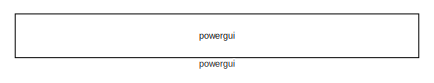
[diagram: root canvas - part 1/13, top center region]
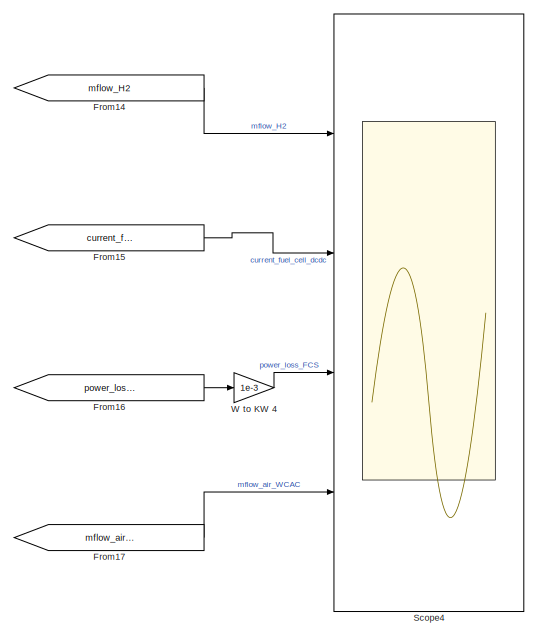
[diagram: root canvas - part 2/13, top right region]
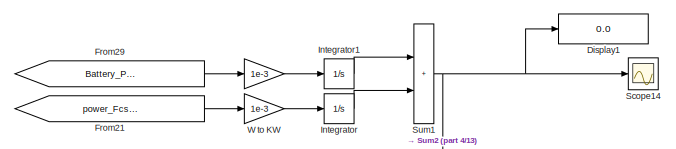
[diagram: root canvas - part 3/13, top center region]
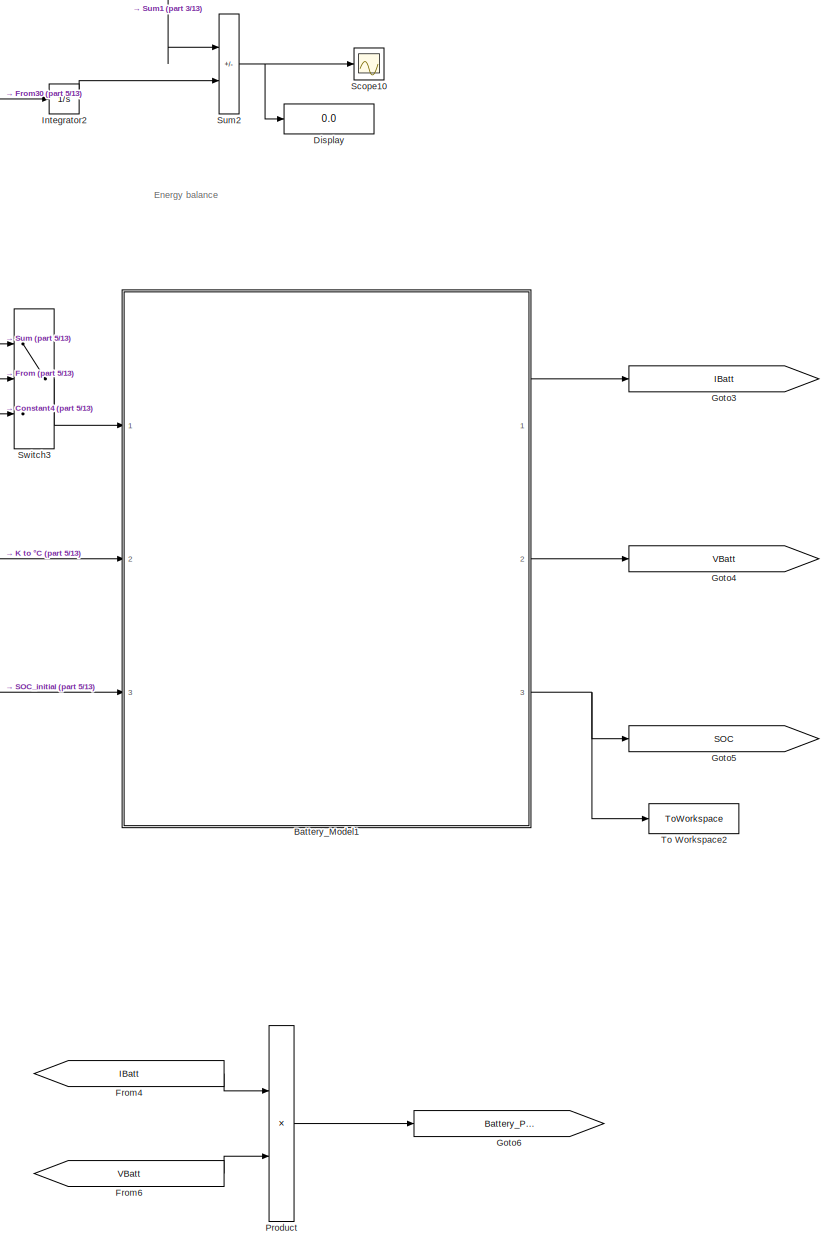
[diagram: root canvas - part 4/13, central region]
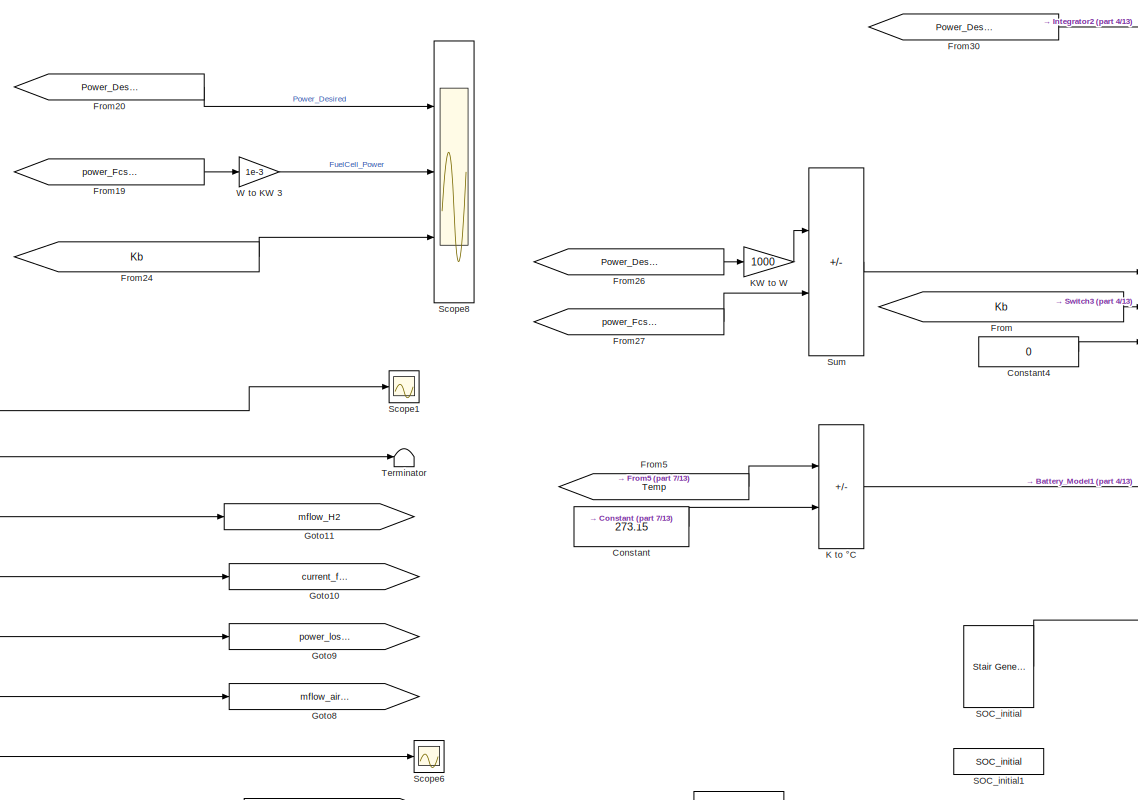
[diagram: root canvas - part 5/13, central region]
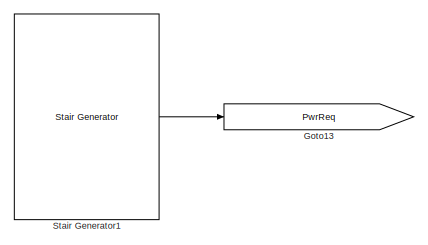
[diagram: root canvas - part 6/13, middle left region]
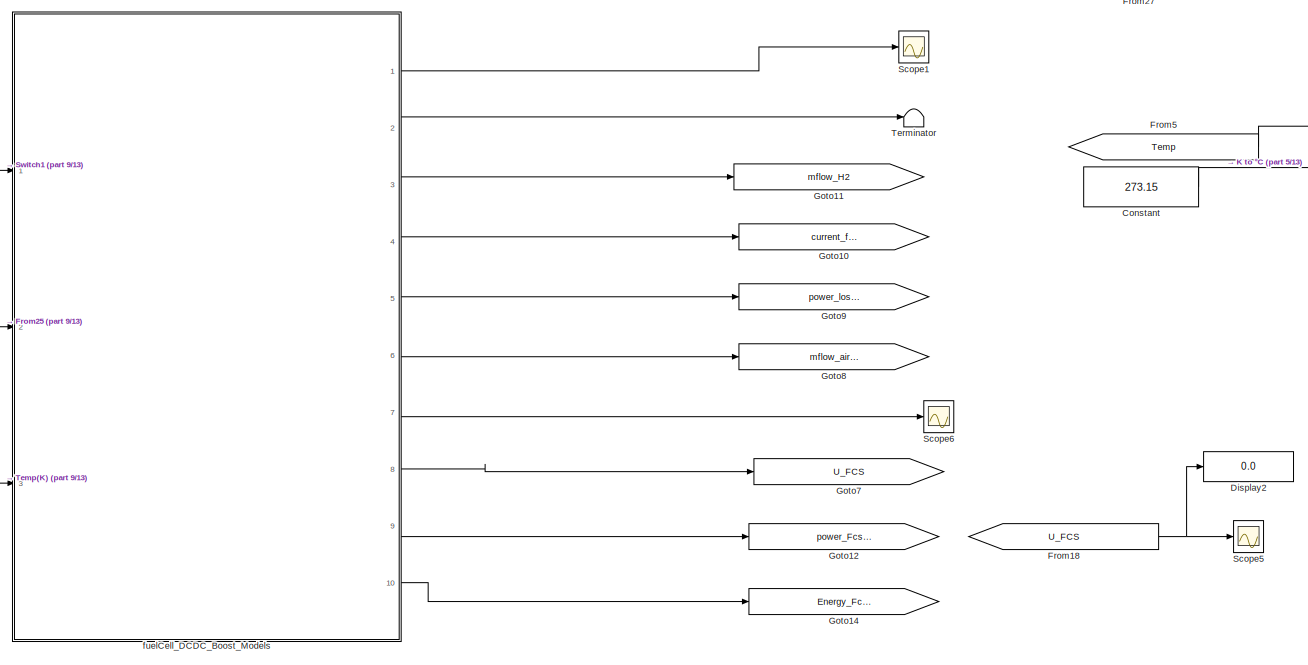
[diagram: root canvas - part 7/13, middle left region]
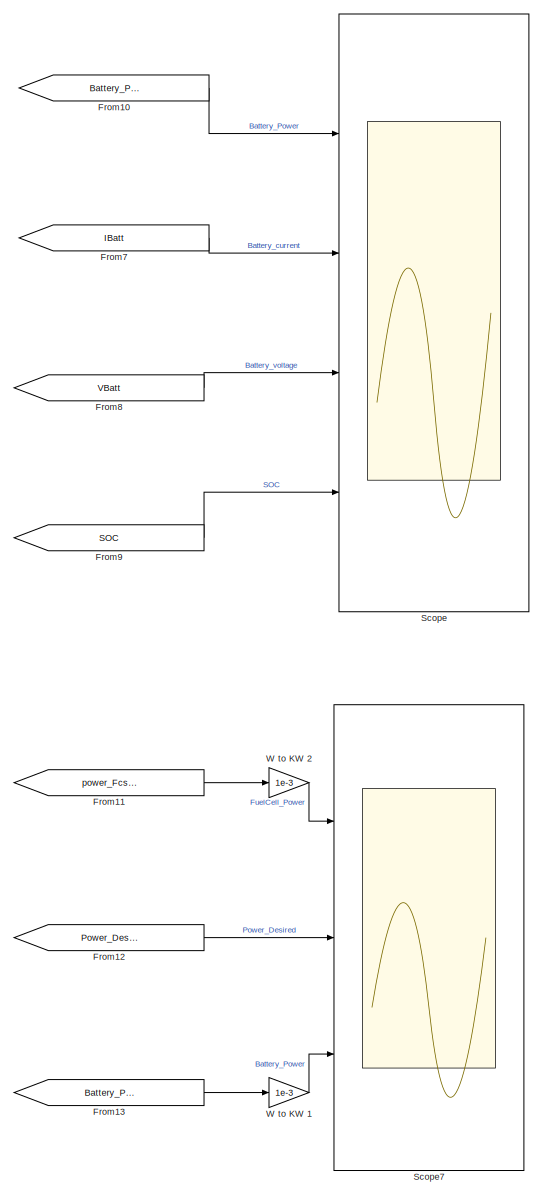
[diagram: root canvas - part 8/13, middle right region]
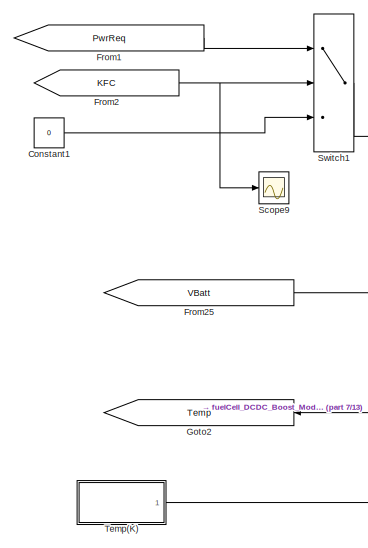
[diagram: root canvas - part 9/13, middle left region]
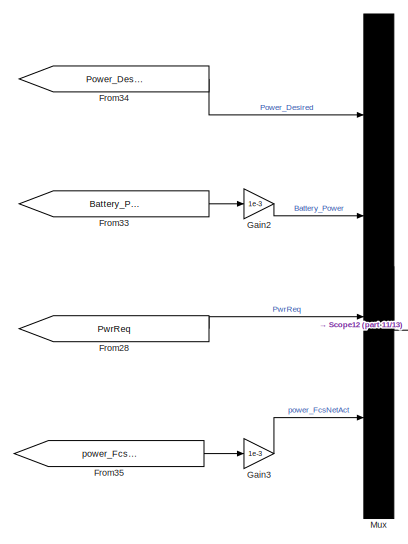
[diagram: root canvas - part 10/13, middle right region]
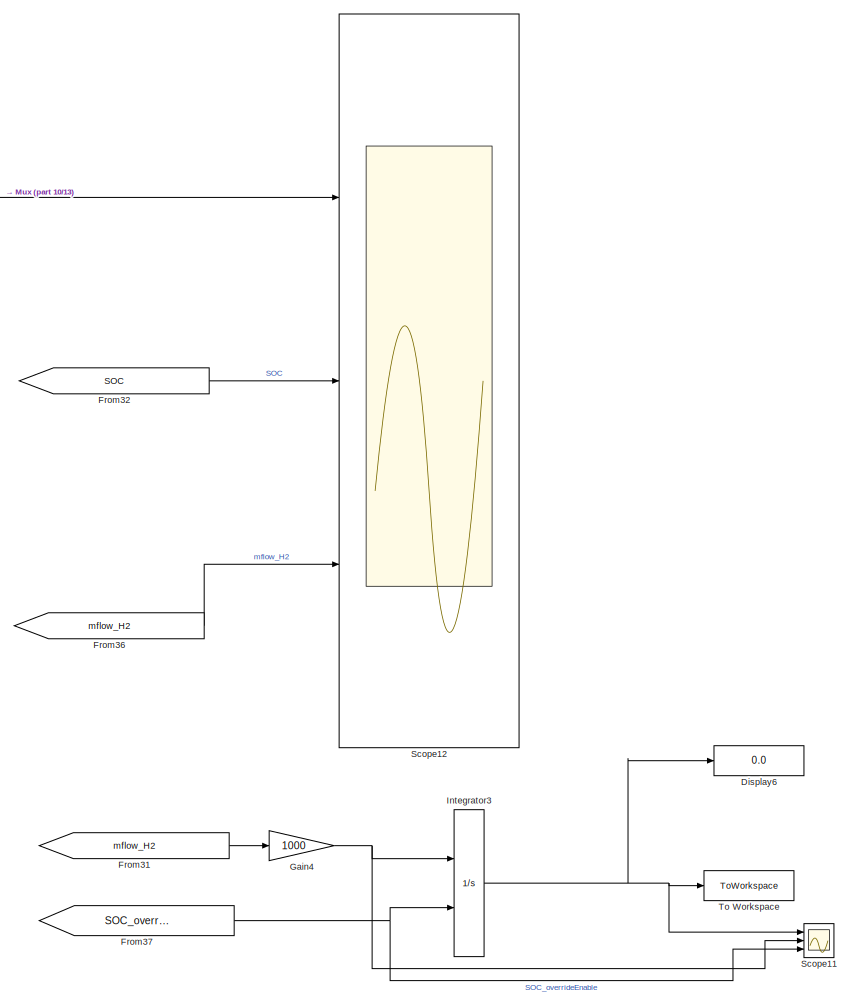
[diagram: root canvas - part 11/13, bottom right region]
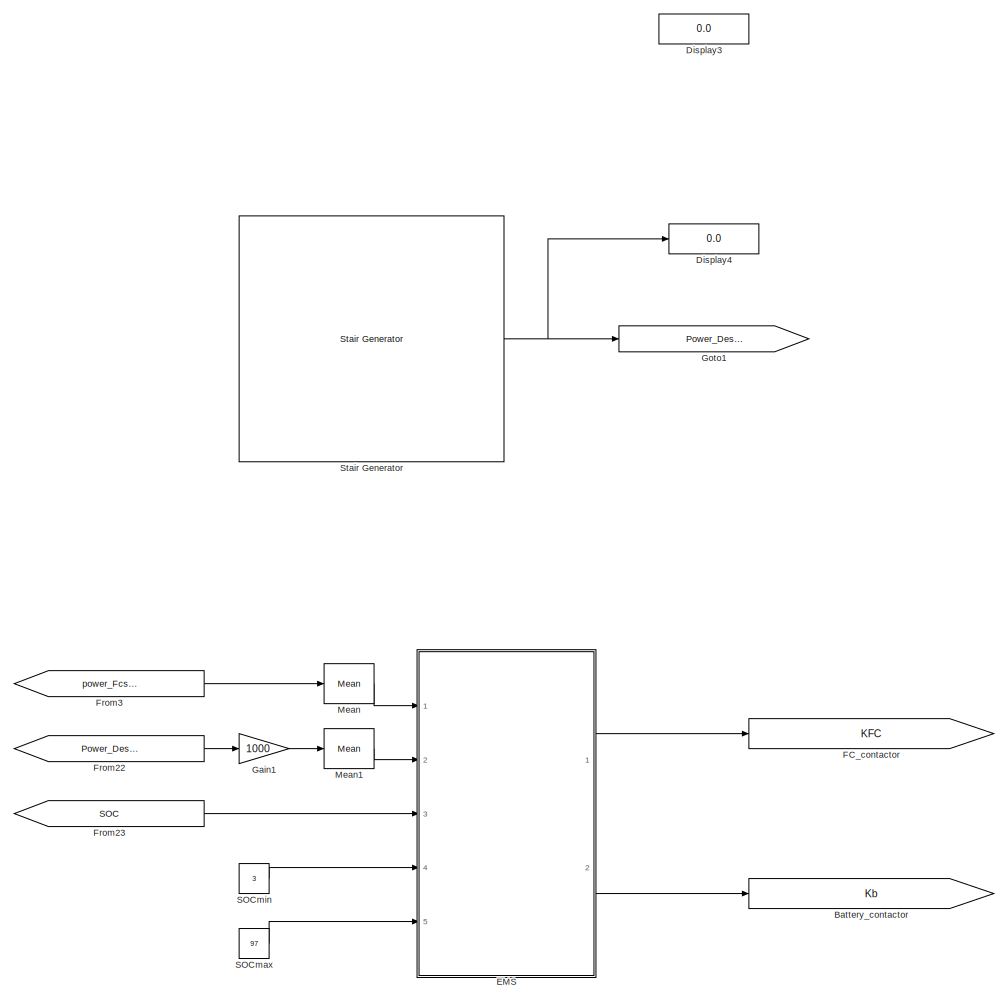
[diagram: root canvas - part 12/13, bottom center region]
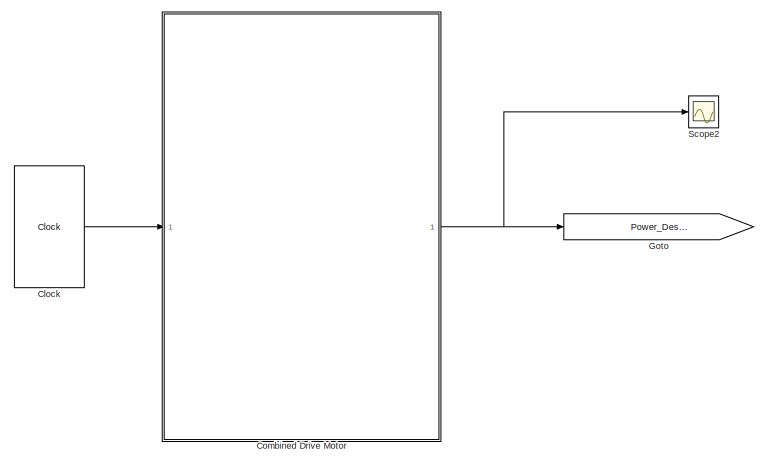
[diagram: root canvas - part 13/13, bottom left region]
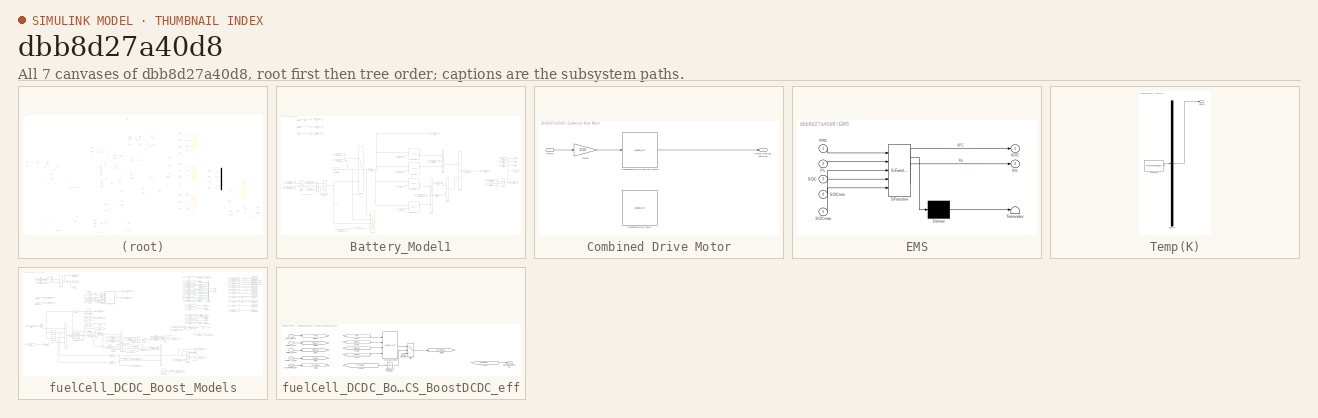
[diagram: thumbnail index - all 7 canvases of the model, root first then tree order]
MODEL slx_dbb8d27a40d8
KIND model
CONFIG AbsTol = auto
CONFIG EnableMultiTasking = off
CONFIG FixedStep = auto
CONFIG MaxStep = auto
CONFIG MinStep = auto
CONFIG RelTol = 1e-3
CONFIG SampleTimeConstraint = Unconstrained
CONFIG SolverName = VariableStepAuto
CONFIG StartTime = 0.0
CONFIG StopTime = stabtime+twdw
BLOCK [Gain]   
  Gain = 1e-3
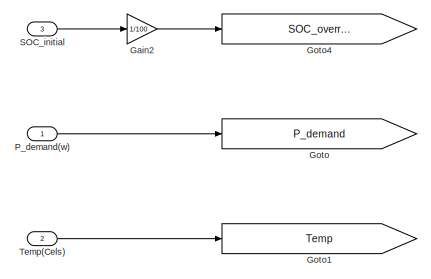
[diagram: Battery_Model1 - part 1/6, top left region]
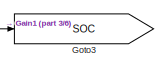
[diagram: Battery_Model1 - part 2/6, top center region]
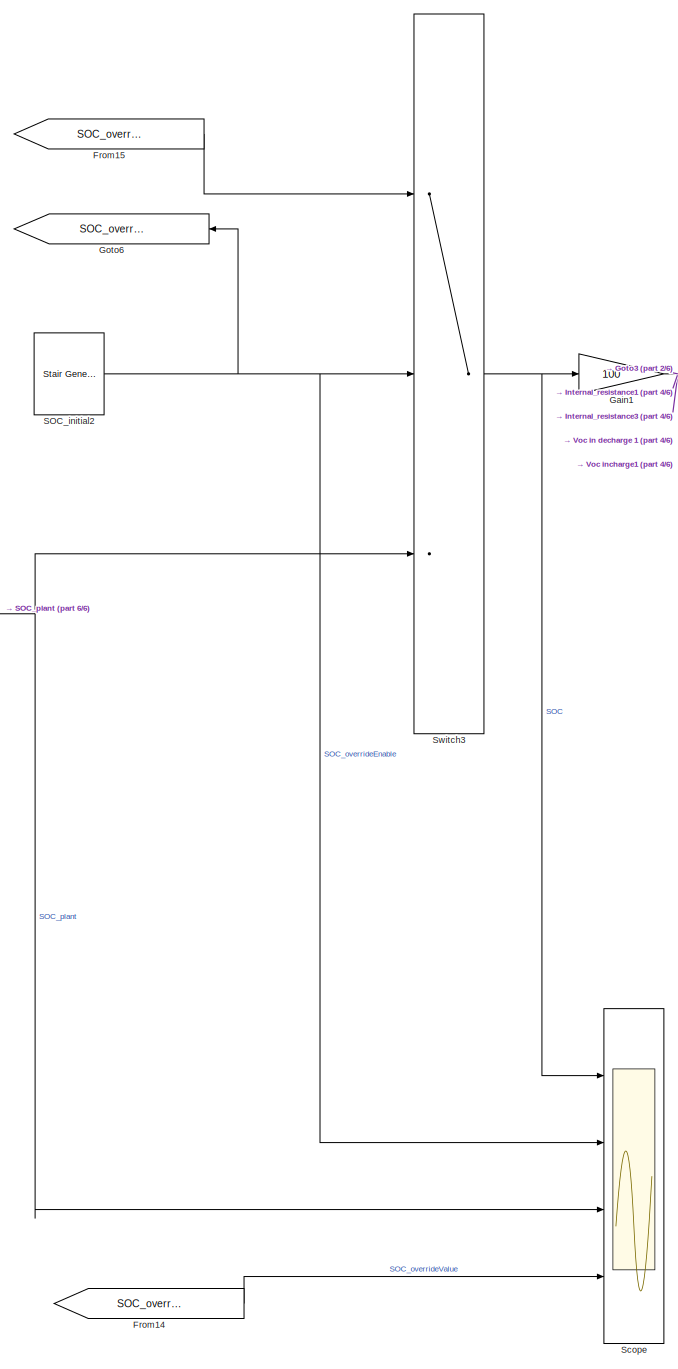
[diagram: Battery_Model1 - part 3/6, left side, full height]
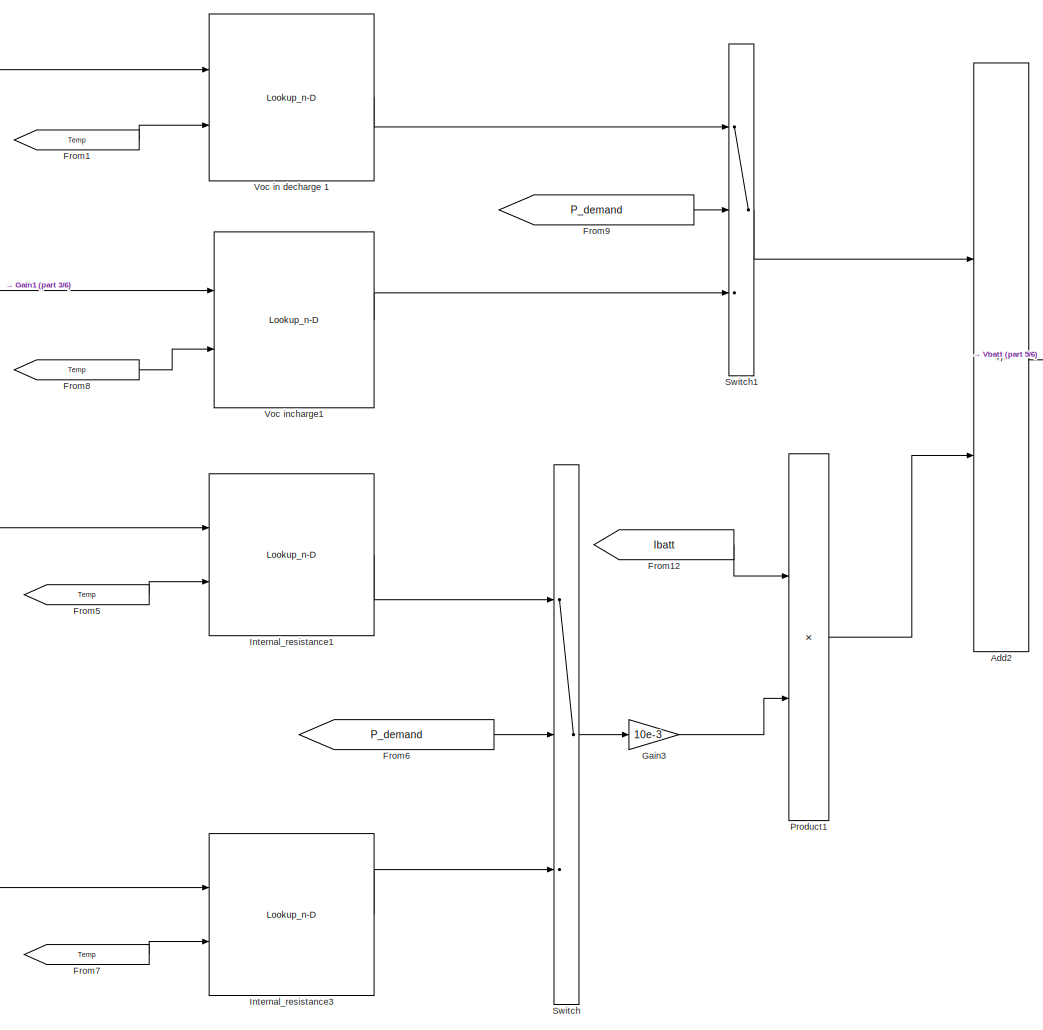
[diagram: Battery_Model1 - part 4/6, central region]
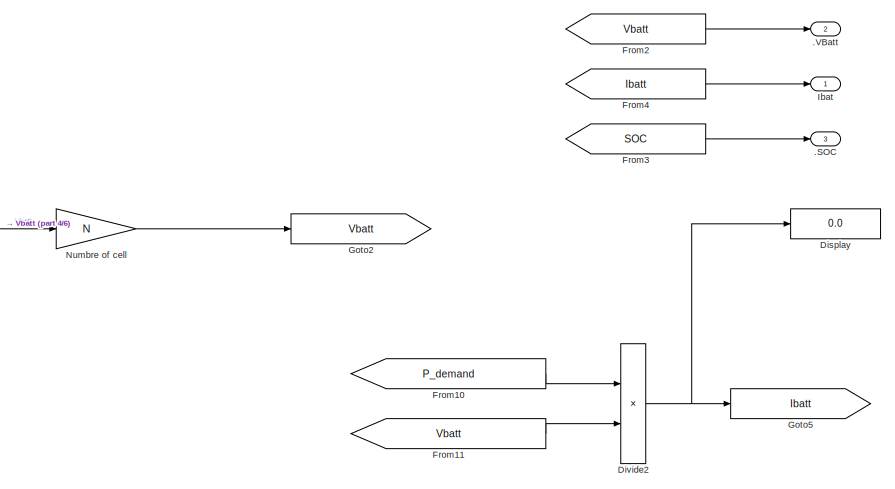
[diagram: Battery_Model1 - part 5/6, middle right region]
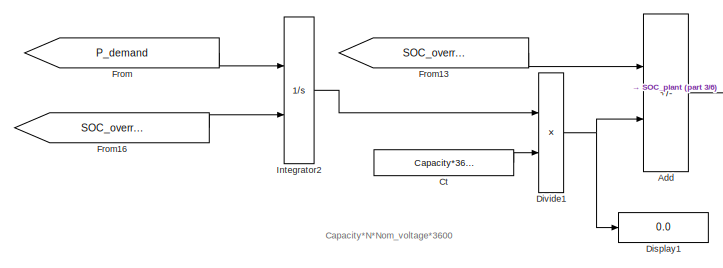
[diagram: Battery_Model1 - part 6/6, middle left region]
BLOCK [SubSystem] Battery_Model1
  Ports = [3, 3]
  RequestExecContextInheritance = off
BLOCK [Outport] Battery_Model1/.SOC
  Port = 3
BLOCK [Outport] Battery_Model1/.VBatt
  Port = 2
BLOCK [Sum] Battery_Model1/Add
  IconShape = rectangular
  Inputs = +-
  Ports = [2, 1]
BLOCK [Sum] Battery_Model1/Add2
  IconShape = rectangular
  Inputs = +-
  Ports = [2, 1]
BLOCK [Constant] Battery_Model1/Ct 
  Value = Capacity*3600*N*Nom_voltage
BLOCK [Display] Battery_Model1/Display
  Decimation = 1
  Ports = [1]
BLOCK [Display] Battery_Model1/Display1
  Decimation = 1
  Ports = [1]
BLOCK [Product] Battery_Model1/Divide1
  Inputs = */
  Ports = [2, 1]
BLOCK [Product] Battery_Model1/Divide2
  Inputs = */
  Ports = [2, 1]
BLOCK [From] Battery_Model1/From
  GotoTag = P_demand
BLOCK [From] Battery_Model1/From1
  GotoTag = Temp
BLOCK [From] Battery_Model1/From10
  GotoTag = P_demand
BLOCK [From] Battery_Model1/From11
  GotoTag = Vbatt
BLOCK [From] Battery_Model1/From12
  GotoTag = Ibatt
BLOCK [From] Battery_Model1/From13
  GotoTag = SOC_overrideValue
BLOCK [From] Battery_Model1/From14
  GotoTag = SOC_overrideValue
BLOCK [From] Battery_Model1/From15
  GotoTag = SOC_overrideValue
BLOCK [From] Battery_Model1/From16
  GotoTag = SOC_overrideEnable
  NameLocation = top
  TagVisibility = global
BLOCK [From] Battery_Model1/From2
  GotoTag = Vbatt
BLOCK [From] Battery_Model1/From3
  GotoTag = SOC
BLOCK [From] Battery_Model1/From4
  GotoTag = Ibatt
BLOCK [From] Battery_Model1/From5
  GotoTag = Temp
BLOCK [From] Battery_Model1/From6
  GotoTag = P_demand
BLOCK [From] Battery_Model1/From7
  GotoTag = Temp
BLOCK [From] Battery_Model1/From8
  GotoTag = Temp
BLOCK [From] Battery_Model1/From9
  GotoTag = P_demand
BLOCK [Gain] Battery_Model1/Gain1
  Gain = 100
BLOCK [Gain] Battery_Model1/Gain2
  Gain = 1/100
BLOCK [Gain] Battery_Model1/Gain3
  Gain = 10e-3
BLOCK [Goto] Battery_Model1/Goto
  GotoTag = P_demand
BLOCK [Goto] Battery_Model1/Goto1
  GotoTag = Temp
BLOCK [Goto] Battery_Model1/Goto2
  GotoTag = Vbatt
BLOCK [Goto] Battery_Model1/Goto3
  GotoTag = SOC
BLOCK [Goto] Battery_Model1/Goto4
  GotoTag = SOC_overrideValue
BLOCK [Goto] Battery_Model1/Goto5
  GotoTag = Ibatt
BLOCK [Goto] Battery_Model1/Goto6
  GotoTag = SOC_overrideEnable
  NameLocation = top
  TagVisibility = global
BLOCK [Outport] Battery_Model1/Ibat
BLOCK [Integrator] Battery_Model1/Integrator2
  ExternalReset = either
  Ports = [2, 1]
BLOCK [Lookup_n-D] Battery_Model1/Internal_resistance1
  BreakpointsForDimension1 = SOCR
  BreakpointsForDimension2 = [-20 -10 0 5 10 20 25 35 45 50\n]
  BreakpointsForDimension3 = [5, 7]
  InputPortMap = u0,u1
  InternalRulePriority = Speed
  Ports = [2, 1]
  RndMeth = Simplest
  Table = RInDechrg
BLOCK [Lookup_n-D] Battery_Model1/Internal_resistance3
  BreakpointsForDimension1 = [3\n;5\n;10\n;15\n;20\n;25\n;30\n;35\n;40\n;45\n;50\n;55\n;60\n;65\n;70\n;75\n;80\n;85\n;90\n;95\n;97]
  BreakpointsForDimension2 = [-20 -10 0 5 10 20 25 35 45 50\n]
  BreakpointsForDimension3 = [5, 7]
  InputPortMap = u0,u1
  InternalRulePriority = Speed
  Ports = [2, 1]
  RndMeth = Simplest
  Table = Rincharge
BLOCK [Gain] Battery_Model1/Numbre of cell
  Gain = N
BLOCK [Inport] Battery_Model1/P_demand(w)
BLOCK [Product] Battery_Model1/Product1
  Ports = [2, 1]
BLOCK [Inport] Battery_Model1/SOC_initial
  Port = 3
BLOCK [Reference] Battery_Model1/SOC_initial2  REF=eeStairGenerator/Stair Generator
  Ports = [0, 1]
  SourceBlock = eeStairGenerator/Stair Generator
  SourceProductBaseCode = PS
  SourceType = Stair Generator
BLOCK [Scope] Battery_Model1/Scope
  Floating = off
  NumInputPorts = 4
  Ports = [4]
  ScopeSpecificationString = Simulink.scopes.TimeScopeBlockCfg('CurrentConfiguration', extmgr.ConfigurationSet(extmgr.Configuration('Core','General UI',true,'FigureColor',[1 1 1]),extmgr.Configuration('Core','Source UI',true),extmgr.Configuration('Sources','WiredSimulink',true,'DataLoggingVariableName','ScopeData1'),extmgr.Configuration('Visuals','Time Domain',true,'SerializedDisplays',{struct('MinYLimReal','0.49883','MaxYLim...<+4352ch>
BLOCK [Switch] Battery_Model1/Switch
  Criteria = u2 > Threshold
  InputSameDT = off
  SaturateOnIntegerOverflow = off
BLOCK [Switch] Battery_Model1/Switch1
  Criteria = u2 > Threshold
  InputSameDT = off
  NameLocation = right
  SaturateOnIntegerOverflow = off
BLOCK [Switch] Battery_Model1/Switch3
  Criteria = u2 > Threshold
  InputSameDT = off
  SaturateOnIntegerOverflow = off
BLOCK [Inport] Battery_Model1/Temp(Cels)
  Port = 2
BLOCK [Lookup_n-D] Battery_Model1/Voc  in decharge 1
  BreakpointsForDimension1 = [0;\n3\n;5\n;10\n;15\n;20\n;25\n;30\n;35\n;40\n;45\n;50\n;55\n;60\n;65\n;70\n;75\n;80\n;85\n;90\n;95\n;97;\n100]
  BreakpointsForDimension2 = [-20 -10 0 5 10 20 25 35 45 50\n]
  BreakpointsForDimension3 = [5, 7]
  InputPortMap = u0,u1
  InternalRulePriority = Speed
  Ports = [2, 1]
  RndMeth = Simplest
  Table = OPCircuitDechg
BLOCK [Lookup_n-D] Battery_Model1/Voc  incharge1
  BreakpointsForDimension1 = [0;\n3\n;5\n;10\n;15\n;20\n;25\n;30\n;35\n;40\n;45\n;50\n;55\n;60\n;65\n;70\n;75\n;80\n;85\n;90\n;95\n;97;\n100]
  BreakpointsForDimension2 = [-20 -10 0 5 10 20 25 35 45 50\n]
  BreakpointsForDimension3 = [5, 7]
  InputPortMap = u0,u1
  InternalRulePriority = Speed
  Ports = [2, 1]
  RndMeth = Simplest
  Table = [3.004	3.004	3.004	3.004	3.004	2.998	2.995	2.984	2.973	2.967\n;3.191	3.191	3.191	3.191	3.191	3.097	3.186	3.174	3.163	3.157\n;3.316	3.316	3.316	3.316	3.316	3.163	3.313	3.301	3.289	3.283\n;3.414	3.414	3.414	3.414	3.414	3.263	3.412	3.397	3.381	3.374\n;3.461	3.461	3.461	3.461	3.461	3.385	3.461	3.459	3.458	3.457\n;3.510	3.510	3.510	3.510	3.510	3.468	3.511	3.506	3.502	3.500\n;3.561	3.561	3.561	3.561	3.561	3.5...<+1004ch>
BLOCK [Goto] Battery_contactor
  GotoTag = Kb
BLOCK [Clock] Clock
  Commented = on
  Decimation = 1
BLOCK [SubSystem] Combined Drive Motor
  Commented = on
  Ports = [1, 1]
  RequestExecContextInheritance = off
BLOCK [Lookup_n-D] Combined Drive Motor/Combined EDM Electrical Power
  BreakpointsForDimension1 = Time
  BreakpointsForDimension1FirstPoint = 10
  BreakpointsForDimension1Spacing = 12
  BreakpointsForDimension2FirstPoint = 10
  BreakpointsForDimension2Spacing = 12
  InputPortMap = u0
  InternalRulePriority = Speed
  LookupTableObject = ''
  NumberOfTableDimensions = 1
  Ports = [1, 1]
  RndMeth = Simplest
  Table = CombinedEDMElectricalPower
BLOCK [Lookup_n-D] Combined Drive Motor/Combined EDM Loss 1
  BreakpointsForDimension1 = Time
  BreakpointsForDimension1FirstPoint = 10
  BreakpointsForDimension1Spacing = 12
  BreakpointsForDimension2FirstPoint = 10
  BreakpointsForDimension2Spacing = 12
  Commented = on
  InputPortMap = u0
  InternalRulePriority = Speed
  LookupTableObject = ''
  NumberOfTableDimensions = 1
  Ports = [1, 1]
  RndMeth = Simplest
  Table = CombinedEDMLoss
BLOCK [Gain] Combined Drive Motor/Gain2
  Gain = 1/10
BLOCK [Outport] Combined Drive Motor/Power_Desired_net(KW)
BLOCK [Inport] Combined Drive Motor/Time(s)
BLOCK [Constant] Constant
  Value = 273.15
BLOCK [Constant] Constant1
  Value = 0
BLOCK [Constant] Constant4
  Value = 0
BLOCK [Display] Display
  Decimation = 1
  Ports = [1]
BLOCK [Display] Display1
  Decimation = 1
  Ports = [1]
BLOCK [Display] Display2
  Decimation = 1
  Ports = [1]
BLOCK [Display] Display3
  Decimation = 1
  Ports = [1]
BLOCK [Display] Display4
  Decimation = 1
  Ports = [1]
BLOCK [Display] Display6
  Decimation = 1
  Ports = [1]
BLOCK [SubSystem] EMS
  ErrorFcn = Stateflow.Translate.translate
  PermitHierarchicalResolution = ExplicitOnly
  Ports = [5, 2]
  RequestExecContextInheritance = off
  SFBlockType = MATLAB Function
  TreatAsAtomicUnit = on
BLOCK [Demux] EMS/ Demux 
  Outputs = 1
  Ports = [1, 1]
BLOCK [S-Function] EMS/ SFunction 
  EnableBusSupport = on
  FunctionName = sf_sfun
  PortCounts = [5 3]
  Ports = [5, 3]
  SFcnIsStateOwnerBlock = off
  SFunctionDeploymentMode = off
  Tag = Stateflow S-Function 1
BLOCK [Terminator] EMS/ Terminator 
BLOCK [Outport] EMS/KFC
BLOCK [Outport] EMS/Kb
  Port = 2
BLOCK [Inport] EMS/PFC
BLOCK [Inport] EMS/PL
  Port = 2
BLOCK [Inport] EMS/SOC
  Port = 3
BLOCK [Inport] EMS/SOCmax
  Port = 5
BLOCK [Inport] EMS/SOCmin
  Port = 4
BLOCK [Goto] FC_contactor
  GotoTag = KFC
BLOCK [From] From
  GotoTag = Kb
BLOCK [From] From1
  GotoTag = PwrReq
BLOCK [From] From10
  GotoTag = Battery_Power
BLOCK [From] From11
  GotoTag = power_FcsNetAct
BLOCK [From] From12
  GotoTag = Power_Desired
BLOCK [From] From13
  GotoTag = Battery_Power
BLOCK [From] From14
  GotoTag = mflow_H2
BLOCK [From] From15
  GotoTag = current_fuel_cell_dcdc
BLOCK [From] From16
  GotoTag = power_loss_FCS
BLOCK [From] From17
  GotoTag = mflow_air_WCAC
BLOCK [From] From18
  GotoTag = U_FCS
BLOCK [From] From19
  GotoTag = power_FcsNetAct
BLOCK [From] From2
  GotoTag = KFC
BLOCK [From] From20
  GotoTag = Power_Desired
BLOCK [From] From21
  GotoTag = power_FcsNetAct
BLOCK [From] From22
  GotoTag = Power_Desired
BLOCK [From] From23
  GotoTag = SOC
BLOCK [From] From24
  GotoTag = Kb
BLOCK [From] From25
  GotoTag = VBatt
BLOCK [From] From26
  GotoTag = Power_Desired
BLOCK [From] From27
  GotoTag = power_FcsNetAct
BLOCK [From] From28
  GotoTag = PwrReq
BLOCK [From] From29
  GotoTag = Battery_Power
BLOCK [From] From3
  GotoTag = power_FcsNetAct
BLOCK [From] From30
  GotoTag = Power_Desired
BLOCK [From] From31
  GotoTag = mflow_H2
BLOCK [From] From32
  GotoTag = SOC
BLOCK [From] From33
  GotoTag = Battery_Power
BLOCK [From] From34
  GotoTag = Power_Desired
BLOCK [From] From35
  GotoTag = power_FcsNetAct
BLOCK [From] From36
  GotoTag = mflow_H2
BLOCK [From] From37
  GotoTag = SOC_overrideEnable
  NameLocation = top
  TagVisibility = global
BLOCK [From] From4
  GotoTag = IBatt
BLOCK [From] From5
  GotoTag = Temp
BLOCK [From] From6
  GotoTag = VBatt
BLOCK [From] From7
  GotoTag = IBatt
BLOCK [From] From8
  GotoTag = VBatt
BLOCK [From] From9
  GotoTag = SOC
BLOCK [Gain] Gain1
  Gain = 1000
BLOCK [Gain] Gain2
  Gain = 1e-3
BLOCK [Gain] Gain3
  Gain = 1e-3
BLOCK [Gain] Gain4
  Gain = 1000
BLOCK [Goto] Goto
  Commented = on
  GotoTag = Power_Desired
BLOCK [Goto] Goto1
  GotoTag = Power_Desired
BLOCK [Goto] Goto10
  GotoTag = current_fuel_cell_dcdc
BLOCK [Goto] Goto11
  GotoTag = mflow_H2
BLOCK [Goto] Goto12
  GotoTag = power_FcsNetAct
BLOCK [Goto] Goto13
  GotoTag = PwrReq
BLOCK [Goto] Goto14
  GotoTag = Energy_FcsNetAct
BLOCK [Goto] Goto2
  GotoTag = Temp
  NameLocation = top
BLOCK [Goto] Goto3
  GotoTag = IBatt
BLOCK [Goto] Goto4
  GotoTag = VBatt
BLOCK [Goto] Goto5
  GotoTag = SOC
BLOCK [Goto] Goto6
  GotoTag = Battery_Power
BLOCK [Goto] Goto7
  GotoTag = U_FCS
BLOCK [Goto] Goto8
  GotoTag = mflow_air_WCAC
BLOCK [Goto] Goto9
  GotoTag = power_loss_FCS
BLOCK [Integrator] Integrator
  Ports = [1, 1]
BLOCK [Integrator] Integrator1
  Ports = [1, 1]
BLOCK [Integrator] Integrator2
  Ports = [1, 1]
BLOCK [Integrator] Integrator3
  ExternalReset = either
  Ports = [2, 1]
BLOCK [Sum] K to °C 
  IconShape = rectangular
  Inputs = |+-
  Ports = [2, 1]
BLOCK [Gain] KW to W 
  Gain = 1000
BLOCK [Reference] Mean  REF=powerlib_meascontrol/Measurements/Mean
  Ports = [1, 1]
  SourceBlock = powerlib_meascontrol/Measurements/Mean
  SourceProductBaseCode = PS
  SourceType = Mean
BLOCK [Reference] Mean1  REF=powerlib_meascontrol/Measurements/Mean
  Ports = [1, 1]
  SourceBlock = powerlib_meascontrol/Measurements/Mean
  SourceProductBaseCode = PS
  SourceType = Mean
BLOCK [Mux] Mux
  DisplayOption = bar
  Ports = [4, 1]
BLOCK [Product] Product
  Ports = [2, 1]
BLOCK [Reference] SOC_initial  REF=eeStairGenerator/Stair Generator
  Ports = [0, 1]
  SourceBlock = eeStairGenerator/Stair Generator
  SourceProductBaseCode = PS
  SourceType = Stair Generator
BLOCK [Constant] SOC_initial1
  Commented = on
  Value = SOC_initial
BLOCK [Constant] SOCmax
  Value = 97
BLOCK [Constant] SOCmin
  Value = 3
BLOCK [Scope] Scope
  Floating = off
  NumInputPorts = 4
  Ports = [4]
  ScopeSpecificationString = Simulink.scopes.TimeScopeBlockCfg('CurrentConfiguration', extmgr.ConfigurationSet(extmgr.Configuration('Core','General UI',true,'FigureColor',[1 1 1]),extmgr.Configuration('Core','Source UI',true),extmgr.Configuration('Sources','WiredSimulink',true,'DataLoggingVariableName','ScopeData1'),extmgr.Configuration('Visuals','Time Domain',true,'SerializedDisplays',{struct('MinYLimReal','-57550.39043','Ma...<+7220ch>
BLOCK [Scope] Scope1
  Floating = off
  NumInputPorts = 1
  Ports = [1]
  ScopeSpecificationString = Simulink.scopes.TimeScopeBlockCfg('CurrentConfiguration', extmgr.ConfigurationSet(extmgr.Configuration('Core','General UI',true,'FigureColor',[1 1 1]),extmgr.Configuration('Core','Source UI',true),extmgr.Configuration('Sources','WiredSimulink',true,'DataLoggingVariableName','ScopeData2'),extmgr.Configuration('Visuals','Time Domain',true,'SerializedDisplays',{struct('MinYLimReal','-6420.34024','Max...<+2050ch>
BLOCK [Scope] Scope10
  Floating = off
  NumInputPorts = 1
  Ports = [1]
  ScopeSpecificationString = Simulink.scopes.TimeScopeBlockCfg('CurrentConfiguration', extmgr.ConfigurationSet(extmgr.Configuration('Core','General UI',true,'FigureColor',[1 1 1]),extmgr.Configuration('Core','Source UI',true),extmgr.Configuration('Sources','WiredSimulink',true,'DataLoggingVariableName','ScopeData13'),extmgr.Configuration('Visuals','Time Domain',true,'SerializedDisplays',{struct('MinYLimReal','-0.0000000009','...<+2302ch>
BLOCK [Scope] Scope11
  Floating = off
  NumInputPorts = 3
  Ports = [3]
  ScopeSpecificationString = Simulink.scopes.TimeScopeBlockCfg('CurrentConfiguration', extmgr.ConfigurationSet(extmgr.Configuration('Core','General UI',true,'FigureColor',[1 1 1]),extmgr.Configuration('Core','Source UI',true),extmgr.Configuration('Sources','WiredSimulink',true,'DataLoggingVariableName','ScopeData1'),extmgr.Configuration('Visuals','Time Domain',true,'SerializedDisplays',{struct('MinYLimReal','-4.19271','MaxYLi...<+1771ch>
BLOCK [Scope] Scope12
  Floating = off
  NumInputPorts = 3
  Ports = [3]
  ScopeSpecificationString = Simulink.scopes.TimeScopeBlockCfg('CurrentConfiguration', extmgr.ConfigurationSet(extmgr.Configuration('Core','General UI',true,'FigureColor',[1 1 1]),extmgr.Configuration('Core','Source UI',true),extmgr.Configuration('Sources','WiredSimulink',true,'DataLoggingVariableName','ScopeData3'),extmgr.Configuration('Visuals','Time Domain',true,'SerializedDisplays',{struct('MinYLimReal','-63.65515','MaxYL...<+3545ch>
BLOCK [Scope] Scope14
  Floating = off
  NumInputPorts = 1
  Ports = [1]
  ScopeSpecificationString = Simulink.scopes.TimeScopeBlockCfg('CurrentConfiguration', extmgr.ConfigurationSet(extmgr.Configuration('Core','General UI',true,'FigureColor',[1 1 1]),extmgr.Configuration('Core','Source UI',true),extmgr.Configuration('Sources','WiredSimulink',true,'DataLoggingVariableName','ScopeData14'),extmgr.Configuration('Visuals','Time Domain',true,'SerializedDisplays',{struct('MinYLimReal','-43124.84725','M...<+2300ch>
BLOCK [Scope] Scope2
  Floating = off
  NumInputPorts = 1
  Ports = [1]
  ScopeSpecificationString = Simulink.scopes.TimeScopeBlockCfg('CurrentConfiguration', extmgr.ConfigurationSet(extmgr.Configuration('Core','General UI',true),extmgr.Configuration('Core','Source UI',true),extmgr.Configuration('Sources','WiredSimulink',true,'DataLoggingVariableName','ScopeData6'),extmgr.Configuration('Visuals','Time Domain',true,'SerializedDisplays',{struct('MinYLimReal','-130.94895','MaxYLimReal','116.40599','...<+1448ch>
BLOCK [Scope] Scope4
  Floating = off
  NumInputPorts = 4
  Ports = [4]
  ScopeSpecificationString = Simulink.scopes.TimeScopeBlockCfg('CurrentConfiguration', extmgr.ConfigurationSet(extmgr.Configuration('Core','General UI',true,'FigureColor',[1 1 1]),extmgr.Configuration('Core','Source UI',true),extmgr.Configuration('Sources','WiredSimulink',true,'DataLoggingVariableName','ScopeData8'),extmgr.Configuration('Visuals','Time Domain',true,'SerializedDisplays',{struct('MinYLimReal','-0.000000016','Ma...<+7166ch>
BLOCK [Scope] Scope5
  Floating = off
  NumInputPorts = 1
  Ports = [1]
  ScopeSpecificationString = Simulink.scopes.TimeScopeBlockCfg('CurrentConfiguration', extmgr.ConfigurationSet(extmgr.Configuration('Core','General UI',true,'FigureColor',[1 1 1]),extmgr.Configuration('Core','Source UI',true),extmgr.Configuration('Sources','WiredSimulink',true,'DataLoggingVariableName','ScopeData9'),extmgr.Configuration('Visuals','Time Domain',true,'SerializedDisplays',{struct('MinYLimReal','-85.00001','MaxYL...<+1571ch>
BLOCK [Scope] Scope6
  Floating = off
  NumInputPorts = 1
  Ports = [1]
  ScopeSpecificationString = Simulink.scopes.TimeScopeBlockCfg('CurrentConfiguration', extmgr.ConfigurationSet(extmgr.Configuration('Core','General UI',true,'FigureColor',[1 1 1]),extmgr.Configuration('Core','Source UI',true),extmgr.Configuration('Sources','WiredSimulink',true,'DataLoggingVariableName','ScopeData10'),extmgr.Configuration('Visuals','Time Domain',true,'SerializedDisplays',{struct('MinYLimReal','-12769.38366','M...<+1596ch>
BLOCK [Scope] Scope7
  Floating = off
  NumInputPorts = 3
  Ports = [3]
  ScopeSpecificationString = Simulink.scopes.TimeScopeBlockCfg('CurrentConfiguration', extmgr.ConfigurationSet(extmgr.Configuration('Core','General UI',true,'FigureColor',[1 1 1]),extmgr.Configuration('Core','Source UI',true),extmgr.Configuration('Sources','WiredSimulink',true,'DataLoggingVariableName','ScopeData11'),extmgr.Configuration('Visuals','Time Domain',true,'SerializedDisplays',{struct('MinYLimReal','-8.70804','MaxYL...<+3571ch>
BLOCK [Scope] Scope8
  Floating = off
  NumInputPorts = 3
  Ports = [3]
  ScopeSpecificationString = Simulink.scopes.TimeScopeBlockCfg('CurrentConfiguration', extmgr.ConfigurationSet(extmgr.Configuration('Core','General UI',true,'FigureColor',[1 1 1]),extmgr.Configuration('Core','Source UI',true),extmgr.Configuration('Sources','WiredSimulink',true,'DataLoggingVariableName','ScopeData12'),extmgr.Configuration('Visuals','Time Domain',true,'SerializedDisplays',{struct('MinYLimReal','-2.08333','MaxYL...<+3289ch>
BLOCK [Scope] Scope9
  Floating = off
  NumInputPorts = 1
  Ports = [1]
  ScopeSpecificationString = Simulink.scopes.TimeScopeBlockCfg('CurrentConfiguration', extmgr.ConfigurationSet(extmgr.Configuration('Core','General UI',true,'FigureColor',[1 1 1]),extmgr.Configuration('Core','Source UI',true),extmgr.Configuration('Sources','WiredSimulink',true,'DataLoggingVariableName','ScopeData1'),extmgr.Configuration('Visuals','Time Domain',true,'SerializedDisplays',{struct('MinYLimReal','0.9','MaxYLimReal...<+1504ch>
BLOCK [Reference] Stair Generator  REF=eeStairGenerator/Stair Generator
  Ports = [0, 1]
  SourceBlock = eeStairGenerator/Stair Generator
  SourceProductBaseCode = PS
  SourceType = Stair Generator
BLOCK [Reference] Stair Generator1  REF=eeStairGenerator/Stair Generator
  Ports = [0, 1]
  SourceBlock = eeStairGenerator/Stair Generator
  SourceProductBaseCode = PS
  SourceType = Stair Generator
BLOCK [Sum] Sum
  IconShape = rectangular
  Inputs = |+-
  Ports = [2, 1]
BLOCK [Sum] Sum1
  IconShape = rectangular
  Inputs = |++
  Ports = [2, 1]
BLOCK [Sum] Sum2
  IconShape = rectangular
  Inputs = |+-
  Ports = [2, 1]
BLOCK [Switch] Switch1
  Criteria = u2 > Threshold
  InputSameDT = off
  NameLocation = right
  SaturateOnIntegerOverflow = off
BLOCK [Switch] Switch3
  Criteria = u2 > Threshold
  InputSameDT = off
  NameLocation = right
  SaturateOnIntegerOverflow = off
BLOCK [SubSystem] Temp(K)
  ClipboardFcn = sigbuilder_block('clipboard');
  CloseFcn = sigbuilder_block('close');
  ContinueFcn = sigbuilder_block('continue');
  CopyFcn = sigbuilder_block('copy');
  DeleteFcn = sigbuilder_block('delete');
  LoadFcn = sigbuilder_block('load');
  MaskHideContents = on
  ModelCloseFcn = sigbuilder_block('modelClose');
  NameChangeFcn = sigbuilder_block('namechange');
  OpenFcn = sigbuilder_block('open',[595.8 21.6 550.8 361.2 ]);
  PauseFcn = sigbuilder_block('pause');
  Ports = [0, 1]
  PreSaveFcn = sigbuilder_block('preSave');
  RequestExecContextInheritance = off
  StartFcn = sigbuilder_block('start');
  StopFcn = sigbuilder_block('stop');
  Tag = STV Subsys
BLOCK [Demux] Temp(K)/Demux
  DisplayOption = none
  Outputs = 1
  Ports = [1, 1]
  Tag = STV Demux
BLOCK [FromWorkspace] Temp(K)/FromWs
  Tag = STV FromWs
  VariableName = tuvar
BLOCK [Outport] Temp(K)/Signal 1
  Tag = STV Outport
BLOCK [Terminator] Terminator
BLOCK [ToWorkspace] To Workspace
  FixptAsFi = on
  MaxDataPoints = inf
  Ports = [1]
  SampleTime = -1
  Save2DSignal = 2-D array (concatenate along first dimension)
  VariableName = FlwRate
BLOCK [ToWorkspace] To Workspace2
  FixptAsFi = on
  MaxDataPoints = inf
  Ports = [1]
  SampleTime = -1
  Save2DSignal = 2-D array (concatenate along first dimension)
  SaveFormat = Timeseries
  VariableName = SOC
BLOCK [Gain] W to KW
  Gain = 1e-3
BLOCK [Gain] W to KW 1
  Gain = 1e-3
BLOCK [Gain] W to KW 2
  Gain = 1e-3
BLOCK [Gain] W to KW 3
  Gain = 1e-3
BLOCK [Gain] W to KW 4
  Gain = 1e-3
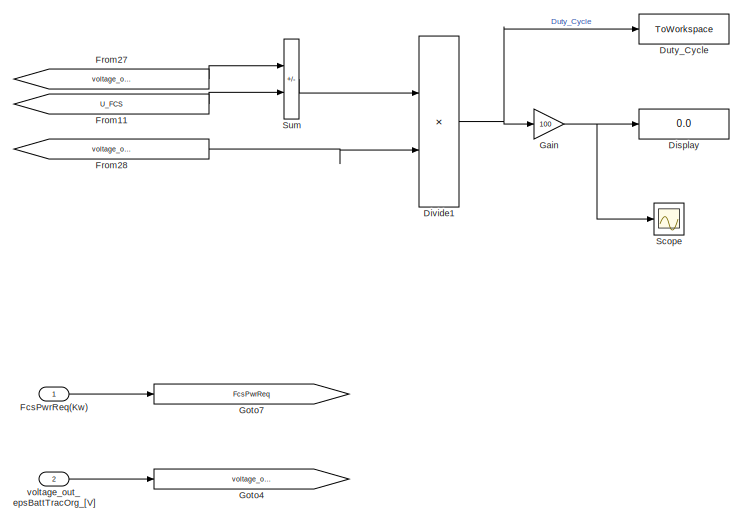
[diagram: fuelCell_DCDC_Boost_Models - part 1/6, top left region]
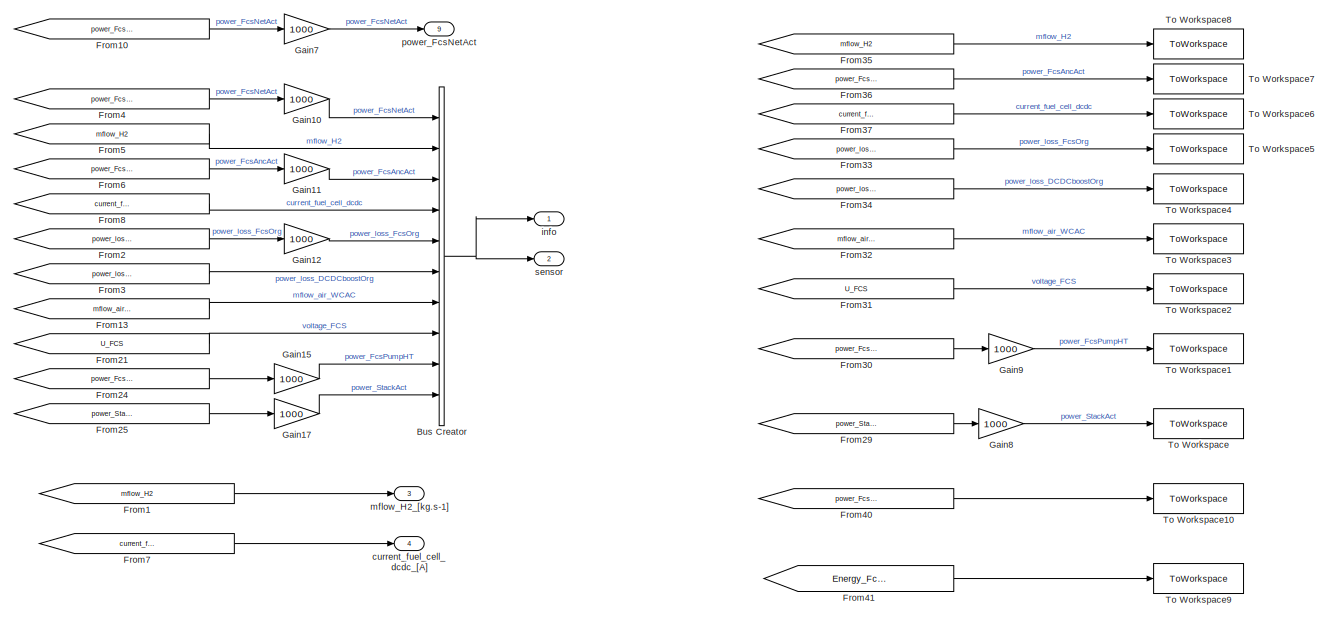
[diagram: fuelCell_DCDC_Boost_Models - part 2/6, top right region]
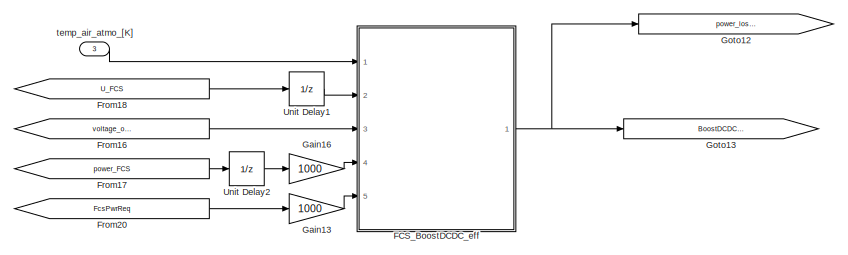
[diagram: fuelCell_DCDC_Boost_Models - part 3/6, top center region]
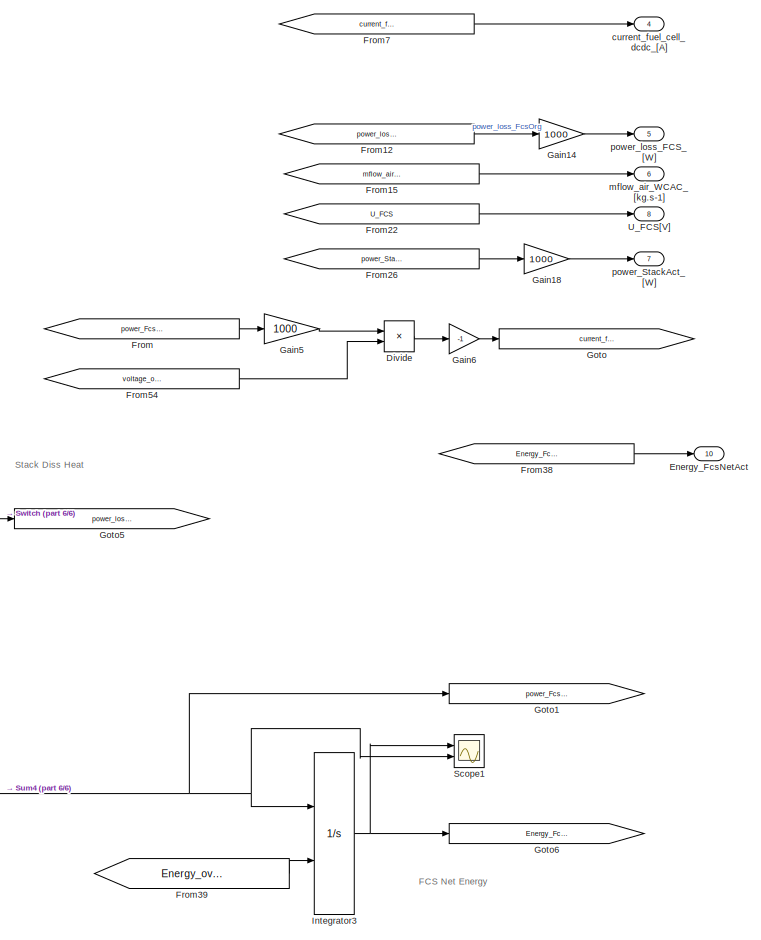
[diagram: fuelCell_DCDC_Boost_Models - part 4/6, middle right region]
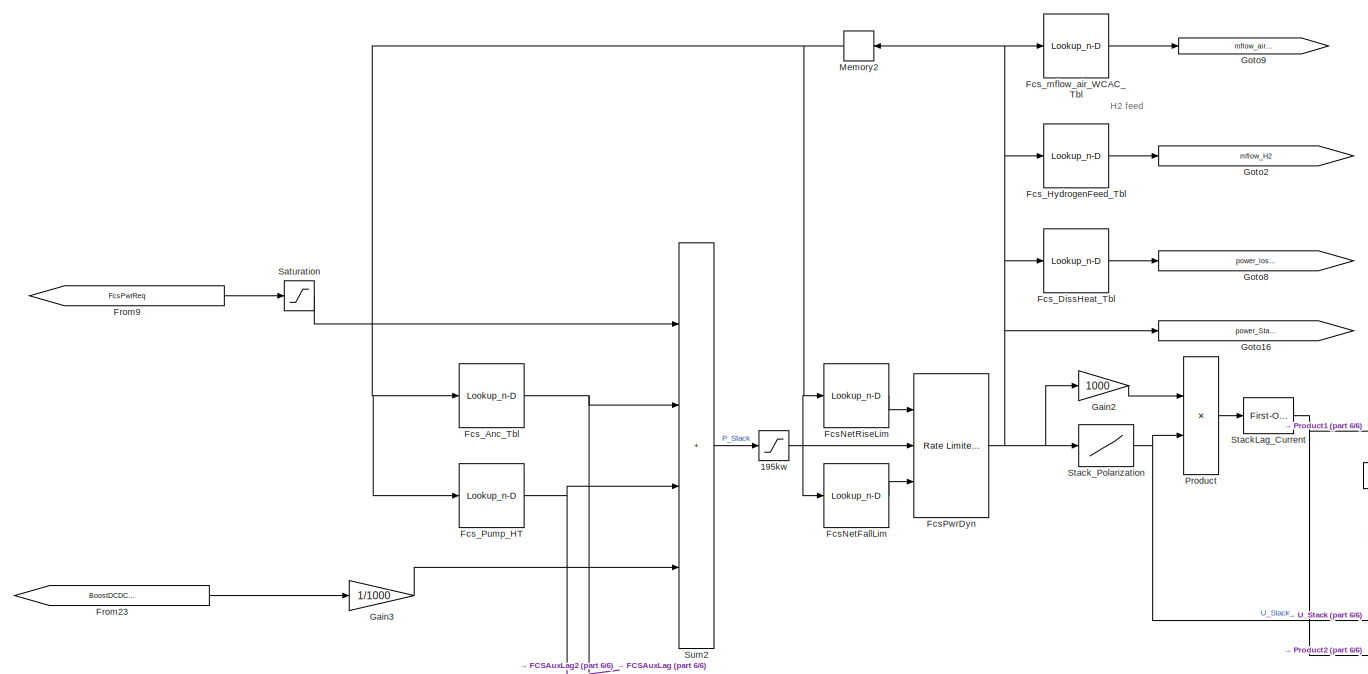
[diagram: fuelCell_DCDC_Boost_Models - part 5/6, middle left region]
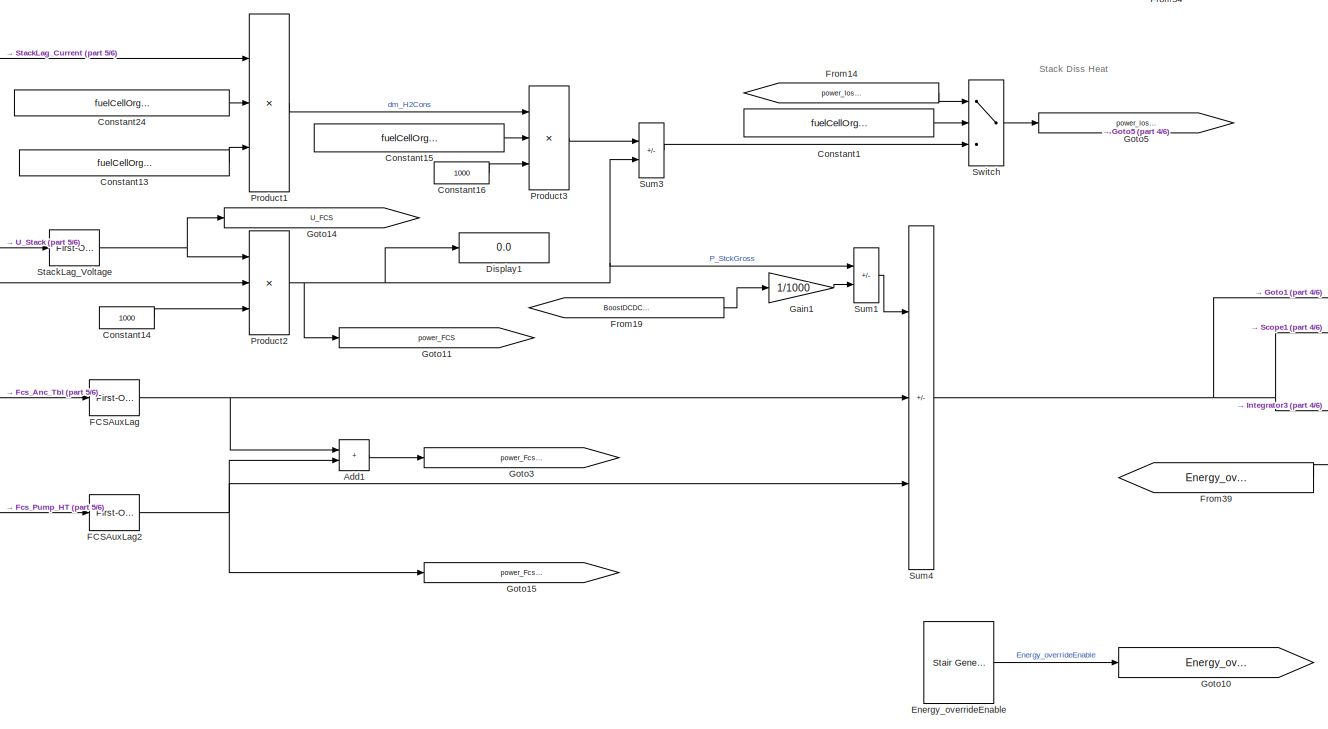
[diagram: fuelCell_DCDC_Boost_Models - part 6/6, bottom center region]
BLOCK [SubSystem] fuelCell_DCDC_Boost_Models
  Ports = [3, 10]
  RequestExecContextInheritance = off
BLOCK [Saturate] fuelCell_DCDC_Boost_Models/195kw
  LowerLimit = 0
  UpperLimit = max(fuelCellOrg.param.Fcs_Anc_Tbl.x)
BLOCK [Sum] fuelCell_DCDC_Boost_Models/Add1
  IconShape = rectangular
  Ports = [2, 1]
BLOCK [BusCreator] fuelCell_DCDC_Boost_Models/Bus Creator
  DisplayOption = bar
  InheritFromInputs = on
  Inputs = 10
  Ports = [10, 1]
BLOCK [Constant] fuelCell_DCDC_Boost_Models/Constant1
  Value = fuelCellOrg.param.StackDissHeatSrcSel.v
BLOCK [Constant] fuelCell_DCDC_Boost_Models/Constant13
  Value = fuelCellOrg.param.H2MassFlowConsFactor.v
BLOCK [Constant] fuelCell_DCDC_Boost_Models/Constant14
  Value = 1000
BLOCK [Constant] fuelCell_DCDC_Boost_Models/Constant15
  Value = fuelCellOrg.param.StackDissHeatFactor.v
BLOCK [Constant] fuelCell_DCDC_Boost_Models/Constant16
  Value = 1000
BLOCK [Constant] fuelCell_DCDC_Boost_Models/Constant24
  Value = fuelCellOrg.param.n_FcsCellCntSer.v
BLOCK [Display] fuelCell_DCDC_Boost_Models/Display
  Decimation = 1
  Ports = [1]
BLOCK [Display] fuelCell_DCDC_Boost_Models/Display1
  Decimation = 1
  Ports = [1]
BLOCK [Product] fuelCell_DCDC_Boost_Models/Divide
  Inputs = */
  Ports = [2, 1]
BLOCK [Product] fuelCell_DCDC_Boost_Models/Divide1
  Inputs = */
  Ports = [2, 1]
BLOCK [ToWorkspace] fuelCell_DCDC_Boost_Models/Duty_Cycle
  Commented = on
  FixptAsFi = on
  MaxDataPoints = inf
  Ports = [1]
  SampleTime = -1
  SaveFormat = Timeseries
  VariableName = DutyCycle
BLOCK [Outport] fuelCell_DCDC_Boost_Models/Energy_FcsNetAct
  Port = 10
BLOCK [Reference] fuelCell_DCDC_Boost_Models/Energy_overrideEnable  REF=eeStairGenerator/Stair Generator
  Ports = [0, 1]
  SourceBlock = eeStairGenerator/Stair Generator
  SourceProductBaseCode = PS
  SourceType = Stair Generator
BLOCK [Reference] fuelCell_DCDC_Boost_Models/FCSAuxLag  REF=powerlib_meascontrol/Filters/First-Order
Filter
  Ports = [1, 1]
  SourceBlock = powerlib_meascontrol/Filters/First-Order\nFilter
  SourceProductBaseCode = PS
  SourceType = First-Order Filter
BLOCK [Reference] fuelCell_DCDC_Boost_Models/FCSAuxLag2  REF=powerlib_meascontrol/Filters/First-Order
Filter
  Ports = [1, 1]
  SourceBlock = powerlib_meascontrol/Filters/First-Order\nFilter
  SourceProductBaseCode = PS
  SourceType = First-Order Filter
BLOCK [SubSystem] fuelCell_DCDC_Boost_Models/FCS_BoostDCDC_eff
  Ports = [5, 1]
  RequestExecContextInheritance = off
BLOCK [Outport] fuelCell_DCDC_Boost_Models/FCS_BoostDCDC_eff/BoostDCDCPloss_[W]
BLOCK [Reference] fuelCell_DCDC_Boost_Models/FCS_BoostDCDC_eff/Compare To Constant  REF=simulink/Logic and Bit
Operations/Compare
To Constant
  Ports = [1, 1]
  SourceBlock = simulink/Logic and Bit\nOperations/Compare\nTo Constant
  SourceProductBaseCode = SL
  SourceType = Compare To Constant
BLOCK [Constant] fuelCell_DCDC_Boost_Models/FCS_BoostDCDC_eff/Constant1
  Value = 0
BLOCK [Inport] fuelCell_DCDC_Boost_Models/FCS_BoostDCDC_eff/FcsPwrReq_[W]
  Port = 5
BLOCK [From] fuelCell_DCDC_Boost_Models/FCS_BoostDCDC_eff/From
  GotoTag = Temp
BLOCK [From] fuelCell_DCDC_Boost_Models/FCS_BoostDCDC_eff/From1
  GotoTag = VoltageLV
BLOCK [From] fuelCell_DCDC_Boost_Models/FCS_BoostDCDC_eff/From2
  GotoTag = VoltageHV
BLOCK [From] fuelCell_DCDC_Boost_Models/FCS_BoostDCDC_eff/From20
  GotoTag = FcsPwrReq
BLOCK [From] fuelCell_DCDC_Boost_Models/FCS_BoostDCDC_eff/From3
  GotoTag = PowerLV
BLOCK [From] fuelCell_DCDC_Boost_Models/FCS_BoostDCDC_eff/From4
  GotoTag = BoostDCDCPloss
BLOCK [Goto] fuelCell_DCDC_Boost_Models/FCS_BoostDCDC_eff/Goto
  GotoTag = FcsPwrReq
BLOCK [Goto] fuelCell_DCDC_Boost_Models/FCS_BoostDCDC_eff/Goto1
  GotoTag = VoltageLV
BLOCK [Goto] fuelCell_DCDC_Boost_Models/FCS_BoostDCDC_eff/Goto12
  GotoTag = Temp
BLOCK [Goto] fuelCell_DCDC_Boost_Models/FCS_BoostDCDC_eff/Goto2
  GotoTag = VoltageHV
BLOCK [Goto] fuelCell_DCDC_Boost_Models/FCS_BoostDCDC_eff/Goto3
  GotoTag = PowerLV
BLOCK [Goto] fuelCell_DCDC_Boost_Models/FCS_BoostDCDC_eff/Goto5
  GotoTag = BoostDCDCPloss
BLOCK [Switch] fuelCell_DCDC_Boost_Models/FCS_BoostDCDC_eff/Switch
  Criteria = u2 > Threshold
  InputSameDT = off
  SaturateOnIntegerOverflow = off
BLOCK [Lookup_n-D] fuelCell_DCDC_Boost_Models/FCS_BoostDCDC_eff/n-D Lookup Table
  BreakpointsForDimension1 = fuelCellOrg.param.eta_DcDcBoostMap4d.Temp
  BreakpointsForDimension2 = fuelCellOrg.param.eta_DcDcBoostMap4d.VoltageLV
  BreakpointsForDimension3 = fuelCellOrg.param.eta_DcDcBoostMap4d.VoltageHV
  BreakpointsForDimension4 = fuelCellOrg.param.eta_DcDcBoostMap4d.PowerLV
  InputPortMap = u0,u1,u2,u3
  InternalRulePriority = Speed
  NumberOfTableDimensions = 4
  Ports = [4, 1]
  RndMeth = Simplest
  Table = fuelCellOrg.param.eta_DcDcBoostMap4d.v
BLOCK [Inport] fuelCell_DCDC_Boost_Models/FCS_BoostDCDC_eff/power_LV_[W]
  Port = 4
BLOCK [Inport] fuelCell_DCDC_Boost_Models/FCS_BoostDCDC_eff/temp_atmo_[K]
BLOCK [Inport] fuelCell_DCDC_Boost_Models/FCS_BoostDCDC_eff/voltage_HV_[V]
  Port = 3
BLOCK [Inport] fuelCell_DCDC_Boost_Models/FCS_BoostDCDC_eff/voltage_LV_[V]
  Port = 2
BLOCK [Lookup_n-D] fuelCell_DCDC_Boost_Models/FcsNetFallLim
  BreakpointsForDimension1 = fuelCellOrg.param.FcsNetFallLim.x
  ExtrapMethod = Clip
  InputPortMap = u0
  InternalRulePriority = Speed
  NumberOfTableDimensions = 1
  Ports = [1, 1]
  RndMeth = Simplest
  Table = fuelCellOrg.param.FcsNetFallLim.v
  UseLastTableValue = on
BLOCK [Lookup_n-D] fuelCell_DCDC_Boost_Models/FcsNetRiseLim
  BreakpointsForDimension1 = fuelCellOrg.param.FcsNetRiseLim.x
  ExtrapMethod = Clip
  InputPortMap = u0
  InternalRulePriority = Speed
  NumberOfTableDimensions = 1
  Ports = [1, 1]
  RndMeth = Simplest
  Table = fuelCellOrg.param.FcsNetRiseLim.v
  UseLastTableValue = on
BLOCK [Reference] fuelCell_DCDC_Boost_Models/FcsPwrDyn  REF=simulink/Discontinuities/Rate Limiter
Dynamic
  Ports = [3, 1]
  SourceBlock = simulink/Discontinuities/Rate Limiter\nDynamic
  SourceProductBaseCode = SL
  SourceType = Rate Limiter Dynamic
BLOCK [Inport] fuelCell_DCDC_Boost_Models/FcsPwrReq(Kw)
BLOCK [Lookup_n-D] fuelCell_DCDC_Boost_Models/Fcs_Anc_Tbl
  BreakpointsForDimension1 = fuelCellOrg.param.Fcs_Anc_Tbl.x
  ExtrapMethod = Clip
  InputPortMap = u0
  InternalRulePriority = Speed
  NumberOfTableDimensions = 1
  Ports = [1, 1]
  RndMeth = Simplest
  Table = fuelCellOrg.param.Fcs_Anc_Tbl.v
  UseLastTableValue = on
BLOCK [Lookup_n-D] fuelCell_DCDC_Boost_Models/Fcs_DissHeat_Tbl
  BreakpointsForDimension1 = fuelCellOrg.param.Fcs_DissHeat_Tbl.x
  ExtrapMethod = Clip
  InputPortMap = u0
  InternalRulePriority = Speed
  NumberOfTableDimensions = 1
  Ports = [1, 1]
  RndMeth = Simplest
  Table = fuelCellOrg.param.Fcs_DissHeat_Tbl.v
  UseLastTableValue = on
BLOCK [Lookup_n-D] fuelCell_DCDC_Boost_Models/Fcs_HydrogenFeed_Tbl
  BreakpointsForDimension1 = fuelCellOrg.param.Fcs_HydrogenFeed_Tbl.x
  ExtrapMethod = Clip
  InputPortMap = u0
  InternalRulePriority = Speed
  NumberOfTableDimensions = 1
  Ports = [1, 1]
  RndMeth = Simplest
  Table = fuelCellOrg.param.Fcs_HydrogenFeed_Tbl.v
  UseLastTableValue = on
BLOCK [Lookup_n-D] fuelCell_DCDC_Boost_Models/Fcs_Pump_HT
  BreakpointsForDimension1 = fuelCellOrg.param.P_FcsPumpHT.x
  ExtrapMethod = Clip
  InputPortMap = u0
  InternalRulePriority = Speed
  NumberOfTableDimensions = 1
  Ports = [1, 1]
  RndMeth = Simplest
  Table = fuelCellOrg.param.P_FcsPumpHT.v
  UseLastTableValue = on
BLOCK [Lookup_n-D] fuelCell_DCDC_Boost_Models/Fcs_mflow_air_WCAC_Tbl
  BreakpointsForDimension1 = fuelCellOrg.param.Fcs_mflow_air_WCAC_Tbl.x
  ExtrapMethod = Clip
  InputPortMap = u0
  InternalRulePriority = Speed
  NumberOfTableDimensions = 1
  Ports = [1, 1]
  RndMeth = Simplest
  Table = fuelCellOrg.param.Fcs_mflow_air_WCAC_Tbl.v
  UseLastTableValue = on
BLOCK [From] fuelCell_DCDC_Boost_Models/From
  GotoTag = power_FcsNetAct
BLOCK [From] fuelCell_DCDC_Boost_Models/From1
  GotoTag = mflow_H2
BLOCK [From] fuelCell_DCDC_Boost_Models/From10
  GotoTag = power_FcsNetAct
BLOCK [From] fuelCell_DCDC_Boost_Models/From11
  GotoTag = U_FCS
BLOCK [From] fuelCell_DCDC_Boost_Models/From12
  GotoTag = power_loss_FcsOrg
BLOCK [From] fuelCell_DCDC_Boost_Models/From13
  GotoTag = mflow_air_WCAC
BLOCK [From] fuelCell_DCDC_Boost_Models/From14
  GotoTag = power_loss_FcsOrg_map
BLOCK [From] fuelCell_DCDC_Boost_Models/From15
  GotoTag = mflow_air_WCAC
BLOCK [From] fuelCell_DCDC_Boost_Models/From16
  GotoTag = voltage_out_epsBattTracOrg
BLOCK [From] fuelCell_DCDC_Boost_Models/From17
  GotoTag = power_FCS
BLOCK [From] fuelCell_DCDC_Boost_Models/From18
  GotoTag = U_FCS
BLOCK [From] fuelCell_DCDC_Boost_Models/From19
  GotoTag = BoostDCDCPloss
BLOCK [From] fuelCell_DCDC_Boost_Models/From2
  GotoTag = power_loss_FcsOrg
BLOCK [From] fuelCell_DCDC_Boost_Models/From20
  GotoTag = FcsPwrReq
BLOCK [From] fuelCell_DCDC_Boost_Models/From21
  GotoTag = U_FCS
BLOCK [From] fuelCell_DCDC_Boost_Models/From22
  GotoTag = U_FCS
BLOCK [From] fuelCell_DCDC_Boost_Models/From23
  GotoTag = BoostDCDCPloss
BLOCK [From] fuelCell_DCDC_Boost_Models/From24
  GotoTag = power_FcsPumpHT
BLOCK [From] fuelCell_DCDC_Boost_Models/From25
  GotoTag = power_StackAct
BLOCK [From] fuelCell_DCDC_Boost_Models/From26
  GotoTag = power_StackAct
BLOCK [From] fuelCell_DCDC_Boost_Models/From27
  GotoTag = voltage_out_epsBattTracOrg
BLOCK [From] fuelCell_DCDC_Boost_Models/From28
  GotoTag = voltage_out_epsBattTracOrg
BLOCK [From] fuelCell_DCDC_Boost_Models/From29
  GotoTag = power_StackAct
BLOCK [From] fuelCell_DCDC_Boost_Models/From3
  GotoTag = power_loss_DCDCboostOrg
BLOCK [From] fuelCell_DCDC_Boost_Models/From30
  GotoTag = power_FcsPumpHT
BLOCK [From] fuelCell_DCDC_Boost_Models/From31
  GotoTag = U_FCS
BLOCK [From] fuelCell_DCDC_Boost_Models/From32
  GotoTag = mflow_air_WCAC
BLOCK [From] fuelCell_DCDC_Boost_Models/From33
  GotoTag = power_loss_FcsOrg
BLOCK [From] fuelCell_DCDC_Boost_Models/From34
  GotoTag = power_loss_DCDCboostOrg
BLOCK [From] fuelCell_DCDC_Boost_Models/From35
  GotoTag = mflow_H2
BLOCK [From] fuelCell_DCDC_Boost_Models/From36
  GotoTag = power_FcsAncAct
BLOCK [From] fuelCell_DCDC_Boost_Models/From37
  GotoTag = current_fuel_cell_dcdc
BLOCK [From] fuelCell_DCDC_Boost_Models/From38
  GotoTag = Energy_FcsNetAct
BLOCK [From] fuelCell_DCDC_Boost_Models/From39
  GotoTag = Energy_overrideEnable
  NameLocation = top
BLOCK [From] fuelCell_DCDC_Boost_Models/From4
  Commented = on
  GotoTag = power_FcsNetAct
BLOCK [From] fuelCell_DCDC_Boost_Models/From40
  GotoTag = power_FcsNetAct
BLOCK [From] fuelCell_DCDC_Boost_Models/From41
  GotoTag = Energy_FcsNetAct
BLOCK [From] fuelCell_DCDC_Boost_Models/From5
  GotoTag = mflow_H2
BLOCK [From] fuelCell_DCDC_Boost_Models/From54
  GotoTag = voltage_out_epsBattTracOrg
BLOCK [From] fuelCell_DCDC_Boost_Models/From6
  GotoTag = power_FcsAncAct
BLOCK [From] fuelCell_DCDC_Boost_Models/From7
  GotoTag = current_fuel_cell_dcdc
BLOCK [From] fuelCell_DCDC_Boost_Models/From8
  GotoTag = current_fuel_cell_dcdc
BLOCK [From] fuelCell_DCDC_Boost_Models/From9
  GotoTag = FcsPwrReq
BLOCK [Gain] fuelCell_DCDC_Boost_Models/Gain
  Gain = 100
BLOCK [Gain] fuelCell_DCDC_Boost_Models/Gain1
  Gain = 1/1000
BLOCK [Gain] fuelCell_DCDC_Boost_Models/Gain10
  Commented = on
  Gain = 1000
BLOCK [Gain] fuelCell_DCDC_Boost_Models/Gain11
  Gain = 1000
BLOCK [Gain] fuelCell_DCDC_Boost_Models/Gain12
  Gain = 1000
BLOCK [Gain] fuelCell_DCDC_Boost_Models/Gain13
  Gain = 1000
BLOCK [Gain] fuelCell_DCDC_Boost_Models/Gain14
  Gain = 1000
BLOCK [Gain] fuelCell_DCDC_Boost_Models/Gain15
  Gain = 1000
BLOCK [Gain] fuelCell_DCDC_Boost_Models/Gain16
  Gain = 1000
BLOCK [Gain] fuelCell_DCDC_Boost_Models/Gain17
  Gain = 1000
BLOCK [Gain] fuelCell_DCDC_Boost_Models/Gain18
  Gain = 1000
BLOCK [Gain] fuelCell_DCDC_Boost_Models/Gain2
  Gain = 1000
BLOCK [Gain] fuelCell_DCDC_Boost_Models/Gain3
  Gain = 1/1000
BLOCK [Gain] fuelCell_DCDC_Boost_Models/Gain5
  Gain = 1000
BLOCK [Gain] fuelCell_DCDC_Boost_Models/Gain6
  Gain = -1
BLOCK [Gain] fuelCell_DCDC_Boost_Models/Gain7
  Gain = 1000
BLOCK [Gain] fuelCell_DCDC_Boost_Models/Gain8
  Gain = 1000
BLOCK [Gain] fuelCell_DCDC_Boost_Models/Gain9
  Gain = 1000
BLOCK [Goto] fuelCell_DCDC_Boost_Models/Goto
  GotoTag = current_fuel_cell_dcdc
BLOCK [Goto] fuelCell_DCDC_Boost_Models/Goto1
  GotoTag = power_FcsNetAct
BLOCK [Goto] fuelCell_DCDC_Boost_Models/Goto10
  GotoTag = Energy_overrideEnable
BLOCK [Goto] fuelCell_DCDC_Boost_Models/Goto11
  GotoTag = power_FCS
BLOCK [Goto] fuelCell_DCDC_Boost_Models/Goto12
  GotoTag = power_loss_DCDCboostOrg
BLOCK [Goto] fuelCell_DCDC_Boost_Models/Goto13
  GotoTag = BoostDCDCPloss
BLOCK [Goto] fuelCell_DCDC_Boost_Models/Goto14
  GotoTag = U_FCS
BLOCK [Goto] fuelCell_DCDC_Boost_Models/Goto15
  GotoTag = power_FcsPumpHT
BLOCK [Goto] fuelCell_DCDC_Boost_Models/Goto16
  GotoTag = power_StackAct
BLOCK [Goto] fuelCell_DCDC_Boost_Models/Goto2
  GotoTag = mflow_H2
BLOCK [Goto] fuelCell_DCDC_Boost_Models/Goto3
  GotoTag = power_FcsAncAct
BLOCK [Goto] fuelCell_DCDC_Boost_Models/Goto4
  GotoTag = voltage_out_epsBattTracOrg
BLOCK [Goto] fuelCell_DCDC_Boost_Models/Goto5
  GotoTag = power_loss_FcsOrg
BLOCK [Goto] fuelCell_DCDC_Boost_Models/Goto6
  GotoTag = Energy_FcsNetAct
BLOCK [Goto] fuelCell_DCDC_Boost_Models/Goto7
  GotoTag = FcsPwrReq
BLOCK [Goto] fuelCell_DCDC_Boost_Models/Goto8
  GotoTag = power_loss_FcsOrg_map
BLOCK [Goto] fuelCell_DCDC_Boost_Models/Goto9
  GotoTag = mflow_air_WCAC
BLOCK [Integrator] fuelCell_DCDC_Boost_Models/Integrator3
  ExternalReset = either
  Ports = [2, 1]
BLOCK [Memory] fuelCell_DCDC_Boost_Models/Memory2
  NameLocation = top
BLOCK [Product] fuelCell_DCDC_Boost_Models/Product
  Inputs = */
  Ports = [2, 1]
BLOCK [Product] fuelCell_DCDC_Boost_Models/Product1
  Inputs = **/
  Ports = [3, 1]
BLOCK [Product] fuelCell_DCDC_Boost_Models/Product2
  Inputs = **/
  Ports = [3, 1]
BLOCK [Product] fuelCell_DCDC_Boost_Models/Product3
  Inputs = **/
  Ports = [3, 1]
BLOCK [Saturate] fuelCell_DCDC_Boost_Models/Saturation
  LowerLimit = 0
  UpperLimit = fuelCellOrg.param.P_FcsNetMaxLim.v
BLOCK [Scope] fuelCell_DCDC_Boost_Models/Scope
  Floating = off
  NumInputPorts = 1
  Ports = [1]
  ScopeSpecificationString = Simulink.scopes.TimeScopeBlockCfg('CurrentConfiguration', extmgr.ConfigurationSet(extmgr.Configuration('Core','General UI',true,'FigureColor',[1 1 1]),extmgr.Configuration('Core','Source UI',true),extmgr.Configuration('Sources','WiredSimulink',true,'DataLoggingVariableName','ScopeData1'),extmgr.Configuration('Visuals','Time Domain',true,'SerializedDisplays',{struct('MinYLimReal','7.88171','MaxYLim...<+1543ch>
BLOCK [Scope] fuelCell_DCDC_Boost_Models/Scope1
  Floating = off
  NumInputPorts = 2
  Ports = [2]
  ScopeSpecificationString = Simulink.scopes.TimeScopeBlockCfg('CurrentConfiguration', extmgr.ConfigurationSet(extmgr.Configuration('Core','General UI',true),extmgr.Configuration('Core','Source UI',true),extmgr.Configuration('Sources','WiredSimulink',true,'DataLoggingVariableName','ScopeData2'),extmgr.Configuration('Visuals','Time Domain',true,'SerializedDisplays',{struct('MinYLimReal','-260.88132','MaxYLimReal','2347.86453',...<+2089ch>
BLOCK [Reference] fuelCell_DCDC_Boost_Models/StackLag_Current  REF=powerlib_meascontrol/Filters/First-Order
Filter
  Ports = [1, 1]
  SourceBlock = powerlib_meascontrol/Filters/First-Order\nFilter
  SourceProductBaseCode = PS
  SourceType = First-Order Filter
BLOCK [Reference] fuelCell_DCDC_Boost_Models/StackLag_Voltage  REF=powerlib_meascontrol/Filters/First-Order
Filter
  Ports = [1, 1]
  SourceBlock = powerlib_meascontrol/Filters/First-Order\nFilter
  SourceProductBaseCode = PS
  SourceType = First-Order Filter
BLOCK [Lookup] fuelCell_DCDC_Boost_Models/Stack_Polarization
  InputValues = fuelCellOrg.param.StackPolarization.x
  LookUpMeth = Interpolation-Use End Values
  SaturateOnIntegerOverflow = off
  Table = fuelCellOrg.param.StackPolarization.v
BLOCK [Sum] fuelCell_DCDC_Boost_Models/Sum
  IconShape = rectangular
  Inputs = |+-
  Ports = [2, 1]
BLOCK [Sum] fuelCell_DCDC_Boost_Models/Sum1
  IconShape = rectangular
  Inputs = +-
  Ports = [2, 1]
BLOCK [Sum] fuelCell_DCDC_Boost_Models/Sum2
  IconShape = rectangular
  Inputs = ++++
  Ports = [4, 1]
BLOCK [Sum] fuelCell_DCDC_Boost_Models/Sum3
  IconShape = rectangular
  Inputs = +-
  Ports = [2, 1]
BLOCK [Sum] fuelCell_DCDC_Boost_Models/Sum4
  IconShape = rectangular
  Inputs = +--
  Ports = [3, 1]
BLOCK [Switch] fuelCell_DCDC_Boost_Models/Switch
  Criteria = u2 > Threshold
  InputSameDT = off
  SaturateOnIntegerOverflow = off
BLOCK [ToWorkspace] fuelCell_DCDC_Boost_Models/To Workspace
  FixptAsFi = on
  MaxDataPoints = inf
  Ports = [1]
  SampleTime = -1
  SaveFormat = Timeseries
  VariableName = power_StackAct
BLOCK [ToWorkspace] fuelCell_DCDC_Boost_Models/To Workspace1
  FixptAsFi = on
  MaxDataPoints = inf
  Ports = [1]
  SampleTime = -1
  SaveFormat = Timeseries
  VariableName = power_FcsPumpHT
BLOCK [ToWorkspace] fuelCell_DCDC_Boost_Models/To Workspace10
  FixptAsFi = on
  MaxDataPoints = inf
  Ports = [1]
  SampleTime = -1
  SaveFormat = Timeseries
  VariableName = power_FcsNetAct
BLOCK [ToWorkspace] fuelCell_DCDC_Boost_Models/To Workspace2
  FixptAsFi = on
  MaxDataPoints = inf
  Ports = [1]
  SampleTime = -1
  SaveFormat = Timeseries
  VariableName = U_FCS
BLOCK [ToWorkspace] fuelCell_DCDC_Boost_Models/To Workspace3
  FixptAsFi = on
  MaxDataPoints = inf
  Ports = [1]
  SampleTime = -1
  SaveFormat = Timeseries
  VariableName = mflow_air_WCAC
BLOCK [ToWorkspace] fuelCell_DCDC_Boost_Models/To Workspace4
  FixptAsFi = on
  MaxDataPoints = inf
  Ports = [1]
  SampleTime = -1
  SaveFormat = Timeseries
  VariableName = power_loss_DCDCboostOrg
BLOCK [ToWorkspace] fuelCell_DCDC_Boost_Models/To Workspace5
  FixptAsFi = on
  MaxDataPoints = inf
  Ports = [1]
  SampleTime = -1
  SaveFormat = Timeseries
  VariableName = power_loss_FcsOrg
BLOCK [ToWorkspace] fuelCell_DCDC_Boost_Models/To Workspace6
  FixptAsFi = on
  MaxDataPoints = inf
  Ports = [1]
  SampleTime = -1
  SaveFormat = Timeseries
  VariableName = current_fuel_cell_dcdc
BLOCK [ToWorkspace] fuelCell_DCDC_Boost_Models/To Workspace7
  FixptAsFi = on
  MaxDataPoints = inf
  Ports = [1]
  SampleTime = -1
  SaveFormat = Timeseries
  VariableName = power_FcsAncAct
BLOCK [ToWorkspace] fuelCell_DCDC_Boost_Models/To Workspace8
  FixptAsFi = on
  MaxDataPoints = inf
  Ports = [1]
  SampleTime = -1
  SaveFormat = Timeseries
  VariableName = mflow_H2
BLOCK [ToWorkspace] fuelCell_DCDC_Boost_Models/To Workspace9
  FixptAsFi = on
  MaxDataPoints = inf
  Ports = [1]
  SampleTime = -1
  Save2DSignal = 2-D array (concatenate along first dimension)
  VariableName = Energy_FcsNetAct
BLOCK [Outport] fuelCell_DCDC_Boost_Models/U_FCS[V]
  Port = 8
BLOCK [UnitDelay] fuelCell_DCDC_Boost_Models/Unit Delay1
  HasFrameUpgradeWarning = on
  SampleTime = -1
BLOCK [UnitDelay] fuelCell_DCDC_Boost_Models/Unit Delay2
  HasFrameUpgradeWarning = on
  SampleTime = -1
BLOCK [Outport] fuelCell_DCDC_Boost_Models/current_fuel_cell_dcdc_[A]
  Port = 4
BLOCK [Outport] fuelCell_DCDC_Boost_Models/info
BLOCK [Outport] fuelCell_DCDC_Boost_Models/mflow_H2_[kg.s-1]
  Port = 3
BLOCK [Outport] fuelCell_DCDC_Boost_Models/mflow_air_WCAC_[kg.s-1]
  Port = 6
BLOCK [Outport] fuelCell_DCDC_Boost_Models/power_FcsNetAct
  Port = 9
BLOCK [Outport] fuelCell_DCDC_Boost_Models/power_StackAct_[W]
  Port = 7
BLOCK [Outport] fuelCell_DCDC_Boost_Models/power_loss_FCS_[W]
  Port = 5
BLOCK [Outport] fuelCell_DCDC_Boost_Models/sensor
  Port = 2
BLOCK [Inport] fuelCell_DCDC_Boost_Models/temp_air_atmo_[K]
  Port = 3
BLOCK [Inport] fuelCell_DCDC_Boost_Models/voltage_out_epsBattTracOrg_[V]
  Port = 2
BLOCK [Reference] powergui  REF=powerlib/powergui
  Ports = []
  Priority = 1
  SourceBlock = powerlib/powergui
  SourceProductBaseCode = PS
  SourceType = PSB option menu block
ANNOTATION (root): Energy balance
ANNOTATION Battery_Model1: Capacity*N*Nom_voltage*3600
ANNOTATION fuelCell_DCDC_Boost_Models: FCS Net Energy
ANNOTATION fuelCell_DCDC_Boost_Models: H2 feed
ANNOTATION fuelCell_DCDC_Boost_Models: Stack Diss Heat
LINE   :1 -> Integrator1:1
LINE Battery_Model1/Add2:1 -> Battery_Model1/Numbre of cell:1
NET Battery_Model1/Add:1 -> Battery_Model1/Scope:3, Battery_Model1/Switch3:3
LINE Battery_Model1/Ct :1 -> Battery_Model1/Divide1:2
NET Battery_Model1/Divide1:1 -> Battery_Model1/Add:2, Battery_Model1/Display1:1
NET Battery_Model1/Divide2:1 -> Battery_Model1/Display:1, Battery_Model1/Goto5:1
LINE Battery_Model1/From10:1 -> Battery_Model1/Divide2:1
LINE Battery_Model1/From11:1 -> Battery_Model1/Divide2:2
LINE Battery_Model1/From12:1 -> Battery_Model1/Product1:1
LINE Battery_Model1/From13:1 -> Battery_Model1/Add:1
LINE Battery_Model1/From14:1 -> Battery_Model1/Scope:4
LINE Battery_Model1/From15:1 -> Battery_Model1/Switch3:1
LINE Battery_Model1/From16:1 -> Battery_Model1/Integrator2:2
LINE Battery_Model1/From1:1 -> Battery_Model1/Voc  in decharge 1:2
LINE Battery_Model1/From2:1 -> Battery_Model1/.VBatt:1
LINE Battery_Model1/From3:1 -> Battery_Model1/.SOC:1
LINE Battery_Model1/From4:1 -> Battery_Model1/Ibat:1
LINE Battery_Model1/From5:1 -> Battery_Model1/Internal_resistance1:2
LINE Battery_Model1/From6:1 -> Battery_Model1/Switch:2
LINE Battery_Model1/From7:1 -> Battery_Model1/Internal_resistance3:2
LINE Battery_Model1/From8:1 -> Battery_Model1/Voc  incharge1:2
LINE Battery_Model1/From9:1 -> Battery_Model1/Switch1:2
LINE Battery_Model1/From:1 -> Battery_Model1/Integrator2:1
NET Battery_Model1/Gain1:1 -> Battery_Model1/Goto3:1, Battery_Model1/Internal_resistance1:1, Battery_Model1/Internal_resistance3:1, Battery_Model1/Voc  in decharge 1:1, Battery_Model1/Voc  incharge1:1
LINE Battery_Model1/Gain2:1 -> Battery_Model1/Goto4:1
LINE Battery_Model1/Gain3:1 -> Battery_Model1/Product1:2
LINE Battery_Model1/Integrator2:1 -> Battery_Model1/Divide1:1
LINE Battery_Model1/Internal_resistance1:1 -> Battery_Model1/Switch:1
LINE Battery_Model1/Internal_resistance3:1 -> Battery_Model1/Switch:3
LINE Battery_Model1/Numbre of cell:1 -> Battery_Model1/Goto2:1
LINE Battery_Model1/P_demand(w):1 -> Battery_Model1/Goto:1
LINE Battery_Model1/Product1:1 -> Battery_Model1/Add2:2
NET Battery_Model1/SOC_initial2:1 -> Battery_Model1/Goto6:1, Battery_Model1/Scope:2, Battery_Model1/Switch3:2
LINE Battery_Model1/SOC_initial:1 -> Battery_Model1/Gain2:1
LINE Battery_Model1/Switch1:1 -> Battery_Model1/Add2:1
NET Battery_Model1/Switch3:1 -> Battery_Model1/Gain1:1, Battery_Model1/Scope:1
LINE Battery_Model1/Switch:1 -> Battery_Model1/Gain3:1
LINE Battery_Model1/Temp(Cels):1 -> Battery_Model1/Goto1:1
LINE Battery_Model1/Voc  in decharge 1:1 -> Battery_Model1/Switch1:1
LINE Battery_Model1/Voc  incharge1:1 -> Battery_Model1/Switch1:3
LINE Battery_Model1:1 -> Goto3:1
LINE Battery_Model1:2 -> Goto4:1
NET Battery_Model1:3 -> Goto5:1, To Workspace2:1
LINE Clock:1 -> Combined Drive Motor:1
LINE Combined Drive Motor/Combined EDM Electrical Power:1 -> Combined Drive Motor/Power_Desired_net(KW):1
LINE Combined Drive Motor/Gain2:1 -> Combined Drive Motor/Combined EDM Electrical Power:1
LINE Combined Drive Motor/Time(s):1 -> Combined Drive Motor/Gain2:1
NET Combined Drive Motor:1 -> Goto:1, Scope2:1
LINE Constant1:1 -> Switch1:3
LINE Constant4:1 -> Switch3:3
LINE Constant:1 -> K to °C :2
LINE EMS:1 -> FC_contactor:1
LINE EMS:2 -> Battery_contactor:1
LINE From10:1 -> Scope:1
LINE From11:1 -> W to KW 2:1
LINE From12:1 -> Scope7:2
LINE From13:1 -> W to KW 1:1
LINE From14:1 -> Scope4:1
LINE From15:1 -> Scope4:2
LINE From16:1 -> W to KW 4:1
LINE From17:1 -> Scope4:4
NET From18:1 -> Display2:1, Scope5:1
LINE From19:1 -> W to KW 3:1
LINE From1:1 -> Switch1:1
LINE From20:1 -> Scope8:1
LINE From21:1 -> W to KW:1
LINE From22:1 -> Gain1:1
LINE From23:1 -> EMS:3
LINE From24:1 -> Scope8:3
LINE From25:1 -> fuelCell_DCDC_Boost_Models:2
LINE From26:1 -> KW to W :1
LINE From27:1 -> Sum:2
LINE From28:1 -> Mux:3
LINE From29:1 ->   :1
NET From2:1 -> Scope9:1, Switch1:2
LINE From30:1 -> Integrator2:1
LINE From31:1 -> Gain4:1
LINE From32:1 -> Scope12:2
LINE From33:1 -> Gain2:1
LINE From34:1 -> Mux:1
LINE From35:1 -> Gain3:1
LINE From36:1 -> Scope12:3
NET From37:1 -> Integrator3:2, Scope11:3
LINE From3:1 -> Mean:1
LINE From4:1 -> Product:1
LINE From5:1 -> K to °C :1
LINE From6:1 -> Product:2
LINE From7:1 -> Scope:2
LINE From8:1 -> Scope:3
LINE From9:1 -> Scope:4
LINE From:1 -> Switch3:2
LINE Gain1:1 -> Mean1:1
LINE Gain2:1 -> Mux:2
LINE Gain3:1 -> Mux:4
NET Gain4:1 -> Integrator3:1, Scope11:2
LINE Integrator1:1 -> Sum1:1
LINE Integrator2:1 -> Sum2:2
NET Integrator3:1 -> Display6:1, Scope11:1, To Workspace:1
LINE Integrator:1 -> Sum1:2
LINE K to °C :1 -> Battery_Model1:2
LINE KW to W :1 -> Sum:1
LINE Mean1:1 -> EMS:2
LINE Mean:1 -> EMS:1
LINE Mux:1 -> Scope12:1
LINE Product:1 -> Goto6:1
LINE SOC_initial:1 -> Battery_Model1:3
LINE SOCmax:1 -> EMS:5
LINE SOCmin:1 -> EMS:4
LINE Stair Generator1:1 -> Goto13:1
NET Stair Generator:1 -> Display4:1, Goto1:1
NET Sum1:1 -> Display1:1, Scope14:1, Sum2:1
NET Sum2:1 -> Display:1, Scope10:1
LINE Sum:1 -> Switch3:1
LINE Switch1:1 -> fuelCell_DCDC_Boost_Models:1
LINE Switch3:1 -> Battery_Model1:1
NET Temp(K):1 -> Goto2:1, fuelCell_DCDC_Boost_Models:3
LINE W to KW 1:1 -> Scope7:3
LINE W to KW 2:1 -> Scope7:1
LINE W to KW 3:1 -> Scope8:2
LINE W to KW 4:1 -> Scope4:3
LINE W to KW:1 -> Integrator:1
LINE fuelCell_DCDC_Boost_Models/195kw:1 -> fuelCell_DCDC_Boost_Models/FcsPwrDyn:2
LINE fuelCell_DCDC_Boost_Models/Add1:1 -> fuelCell_DCDC_Boost_Models/Goto3:1
NET fuelCell_DCDC_Boost_Models/Bus Creator:1 -> fuelCell_DCDC_Boost_Models/info:1, fuelCell_DCDC_Boost_Models/sensor:1
LINE fuelCell_DCDC_Boost_Models/Constant13:1 -> fuelCell_DCDC_Boost_Models/Product1:3
LINE fuelCell_DCDC_Boost_Models/Constant14:1 -> fuelCell_DCDC_Boost_Models/Product2:3
LINE fuelCell_DCDC_Boost_Models/Constant15:1 -> fuelCell_DCDC_Boost_Models/Product3:2
LINE fuelCell_DCDC_Boost_Models/Constant16:1 -> fuelCell_DCDC_Boost_Models/Product3:3
LINE fuelCell_DCDC_Boost_Models/Constant1:1 -> fuelCell_DCDC_Boost_Models/Switch:2
LINE fuelCell_DCDC_Boost_Models/Constant24:1 -> fuelCell_DCDC_Boost_Models/Product1:2
NET fuelCell_DCDC_Boost_Models/Divide1:1 -> fuelCell_DCDC_Boost_Models/Duty_Cycle:1, fuelCell_DCDC_Boost_Models/Gain:1
LINE fuelCell_DCDC_Boost_Models/Divide:1 -> fuelCell_DCDC_Boost_Models/Gain6:1
LINE fuelCell_DCDC_Boost_Models/Energy_overrideEnable:1 -> fuelCell_DCDC_Boost_Models/Goto10:1
NET fuelCell_DCDC_Boost_Models/FCSAuxLag2:1 -> fuelCell_DCDC_Boost_Models/Add1:2, fuelCell_DCDC_Boost_Models/Goto15:1, fuelCell_DCDC_Boost_Models/Sum4:3
NET fuelCell_DCDC_Boost_Models/FCSAuxLag:1 -> fuelCell_DCDC_Boost_Models/Add1:1, fuelCell_DCDC_Boost_Models/Sum4:2
LINE fuelCell_DCDC_Boost_Models/FCS_BoostDCDC_eff/Compare To Constant:1 -> fuelCell_DCDC_Boost_Models/FCS_BoostDCDC_eff/Switch:2
LINE fuelCell_DCDC_Boost_Models/FCS_BoostDCDC_eff/Constant1:1 -> fuelCell_DCDC_Boost_Models/FCS_BoostDCDC_eff/Switch:3
LINE fuelCell_DCDC_Boost_Models/FCS_BoostDCDC_eff/FcsPwrReq_[W]:1 -> fuelCell_DCDC_Boost_Models/FCS_BoostDCDC_eff/Goto:1
LINE fuelCell_DCDC_Boost_Models/FCS_BoostDCDC_eff/From1:1 -> fuelCell_DCDC_Boost_Models/FCS_BoostDCDC_eff/n-D Lookup Table:2
LINE fuelCell_DCDC_Boost_Models/FCS_BoostDCDC_eff/From20:1 -> fuelCell_DCDC_Boost_Models/FCS_BoostDCDC_eff/Compare To Constant:1
LINE fuelCell_DCDC_Boost_Models/FCS_BoostDCDC_eff/From2:1 -> fuelCell_DCDC_Boost_Models/FCS_BoostDCDC_eff/n-D Lookup Table:3
LINE fuelCell_DCDC_Boost_Models/FCS_BoostDCDC_eff/From3:1 -> fuelCell_DCDC_Boost_Models/FCS_BoostDCDC_eff/n-D Lookup Table:4
LINE fuelCell_DCDC_Boost_Models/FCS_BoostDCDC_eff/From4:1 -> fuelCell_DCDC_Boost_Models/FCS_BoostDCDC_eff/BoostDCDCPloss_[W]:1
LINE fuelCell_DCDC_Boost_Models/FCS_BoostDCDC_eff/From:1 -> fuelCell_DCDC_Boost_Models/FCS_BoostDCDC_eff/n-D Lookup Table:1
LINE fuelCell_DCDC_Boost_Models/FCS_BoostDCDC_eff/Switch:1 -> fuelCell_DCDC_Boost_Models/FCS_BoostDCDC_eff/Goto5:1
LINE fuelCell_DCDC_Boost_Models/FCS_BoostDCDC_eff/n-D Lookup Table:1 -> fuelCell_DCDC_Boost_Models/FCS_BoostDCDC_eff/Switch:1
LINE fuelCell_DCDC_Boost_Models/FCS_BoostDCDC_eff/power_LV_[W]:1 -> fuelCell_DCDC_Boost_Models/FCS_BoostDCDC_eff/Goto3:1
LINE fuelCell_DCDC_Boost_Models/FCS_BoostDCDC_eff/temp_atmo_[K]:1 -> fuelCell_DCDC_Boost_Models/FCS_BoostDCDC_eff/Goto12:1
LINE fuelCell_DCDC_Boost_Models/FCS_BoostDCDC_eff/voltage_HV_[V]:1 -> fuelCell_DCDC_Boost_Models/FCS_BoostDCDC_eff/Goto2:1
LINE fuelCell_DCDC_Boost_Models/FCS_BoostDCDC_eff/voltage_LV_[V]:1 -> fuelCell_DCDC_Boost_Models/FCS_BoostDCDC_eff/Goto1:1
NET fuelCell_DCDC_Boost_Models/FCS_BoostDCDC_eff:1 -> fuelCell_DCDC_Boost_Models/Goto12:1, fuelCell_DCDC_Boost_Models/Goto13:1
LINE fuelCell_DCDC_Boost_Models/FcsNetFallLim:1 -> fuelCell_DCDC_Boost_Models/FcsPwrDyn:3
LINE fuelCell_DCDC_Boost_Models/FcsNetRiseLim:1 -> fuelCell_DCDC_Boost_Models/FcsPwrDyn:1
NET fuelCell_DCDC_Boost_Models/FcsPwrDyn:1 -> fuelCell_DCDC_Boost_Models/Fcs_DissHeat_Tbl:1, fuelCell_DCDC_Boost_Models/Fcs_HydrogenFeed_Tbl:1, fuelCell_DCDC_Boost_Models/Fcs_mflow_air_WCAC_Tbl:1, fuelCell_DCDC_Boost_Models/Gain2:1, fuelCell_DCDC_Boost_Models/Goto16:1, fuelCell_DCDC_Boost_Models/Memory2:1, fuelCell_DCDC_Boost_Models/Stack_Polarization:1
LINE fuelCell_DCDC_Boost_Models/FcsPwrReq(Kw):1 -> fuelCell_DCDC_Boost_Models/Goto7:1
NET fuelCell_DCDC_Boost_Models/Fcs_Anc_Tbl:1 -> fuelCell_DCDC_Boost_Models/FCSAuxLag:1, fuelCell_DCDC_Boost_Models/Sum2:2
LINE fuelCell_DCDC_Boost_Models/Fcs_DissHeat_Tbl:1 -> fuelCell_DCDC_Boost_Models/Goto8:1
LINE fuelCell_DCDC_Boost_Models/Fcs_HydrogenFeed_Tbl:1 -> fuelCell_DCDC_Boost_Models/Goto2:1
NET fuelCell_DCDC_Boost_Models/Fcs_Pump_HT:1 -> fuelCell_DCDC_Boost_Models/FCSAuxLag2:1, fuelCell_DCDC_Boost_Models/Sum2:3
LINE fuelCell_DCDC_Boost_Models/Fcs_mflow_air_WCAC_Tbl:1 -> fuelCell_DCDC_Boost_Models/Goto9:1
LINE fuelCell_DCDC_Boost_Models/From10:1 -> fuelCell_DCDC_Boost_Models/Gain7:1
LINE fuelCell_DCDC_Boost_Models/From11:1 -> fuelCell_DCDC_Boost_Models/Sum:2
LINE fuelCell_DCDC_Boost_Models/From12:1 -> fuelCell_DCDC_Boost_Models/Gain14:1
LINE fuelCell_DCDC_Boost_Models/From13:1 -> fuelCell_DCDC_Boost_Models/Bus Creator:7
LINE fuelCell_DCDC_Boost_Models/From14:1 -> fuelCell_DCDC_Boost_Models/Switch:1
LINE fuelCell_DCDC_Boost_Models/From15:1 -> fuelCell_DCDC_Boost_Models/mflow_air_WCAC_[kg.s-1]:1
LINE fuelCell_DCDC_Boost_Models/From16:1 -> fuelCell_DCDC_Boost_Models/FCS_BoostDCDC_eff:3
LINE fuelCell_DCDC_Boost_Models/From17:1 -> fuelCell_DCDC_Boost_Models/Unit Delay2:1
LINE fuelCell_DCDC_Boost_Models/From18:1 -> fuelCell_DCDC_Boost_Models/Unit Delay1:1
LINE fuelCell_DCDC_Boost_Models/From19:1 -> fuelCell_DCDC_Boost_Models/Gain1:1
LINE fuelCell_DCDC_Boost_Models/From1:1 -> fuelCell_DCDC_Boost_Models/mflow_H2_[kg.s-1]:1
LINE fuelCell_DCDC_Boost_Models/From20:1 -> fuelCell_DCDC_Boost_Models/Gain13:1
LINE fuelCell_DCDC_Boost_Models/From21:1 -> fuelCell_DCDC_Boost_Models/Bus Creator:8
LINE fuelCell_DCDC_Boost_Models/From22:1 -> fuelCell_DCDC_Boost_Models/U_FCS[V]:1
LINE fuelCell_DCDC_Boost_Models/From23:1 -> fuelCell_DCDC_Boost_Models/Gain3:1
LINE fuelCell_DCDC_Boost_Models/From24:1 -> fuelCell_DCDC_Boost_Models/Gain15:1
LINE fuelCell_DCDC_Boost_Models/From25:1 -> fuelCell_DCDC_Boost_Models/Gain17:1
LINE fuelCell_DCDC_Boost_Models/From26:1 -> fuelCell_DCDC_Boost_Models/Gain18:1
LINE fuelCell_DCDC_Boost_Models/From27:1 -> fuelCell_DCDC_Boost_Models/Sum:1
LINE fuelCell_DCDC_Boost_Models/From28:1 -> fuelCell_DCDC_Boost_Models/Divide1:2
LINE fuelCell_DCDC_Boost_Models/From29:1 -> fuelCell_DCDC_Boost_Models/Gain8:1
LINE fuelCell_DCDC_Boost_Models/From2:1 -> fuelCell_DCDC_Boost_Models/Gain12:1
LINE fuelCell_DCDC_Boost_Models/From30:1 -> fuelCell_DCDC_Boost_Models/Gain9:1
LINE fuelCell_DCDC_Boost_Models/From31:1 -> fuelCell_DCDC_Boost_Models/To Workspace2:1
LINE fuelCell_DCDC_Boost_Models/From32:1 -> fuelCell_DCDC_Boost_Models/To Workspace3:1
LINE fuelCell_DCDC_Boost_Models/From33:1 -> fuelCell_DCDC_Boost_Models/To Workspace5:1
LINE fuelCell_DCDC_Boost_Models/From34:1 -> fuelCell_DCDC_Boost_Models/To Workspace4:1
LINE fuelCell_DCDC_Boost_Models/From35:1 -> fuelCell_DCDC_Boost_Models/To Workspace8:1
LINE fuelCell_DCDC_Boost_Models/From36:1 -> fuelCell_DCDC_Boost_Models/To Workspace7:1
LINE fuelCell_DCDC_Boost_Models/From37:1 -> fuelCell_DCDC_Boost_Models/To Workspace6:1
LINE fuelCell_DCDC_Boost_Models/From38:1 -> fuelCell_DCDC_Boost_Models/Energy_FcsNetAct:1
LINE fuelCell_DCDC_Boost_Models/From39:1 -> fuelCell_DCDC_Boost_Models/Integrator3:2
LINE fuelCell_DCDC_Boost_Models/From3:1 -> fuelCell_DCDC_Boost_Models/Bus Creator:6
LINE fuelCell_DCDC_Boost_Models/From40:1 -> fuelCell_DCDC_Boost_Models/To Workspace10:1
LINE fuelCell_DCDC_Boost_Models/From41:1 -> fuelCell_DCDC_Boost_Models/To Workspace9:1
LINE fuelCell_DCDC_Boost_Models/From4:1 -> fuelCell_DCDC_Boost_Models/Gain10:1
LINE fuelCell_DCDC_Boost_Models/From54:1 -> fuelCell_DCDC_Boost_Models/Divide:2
LINE fuelCell_DCDC_Boost_Models/From5:1 -> fuelCell_DCDC_Boost_Models/Bus Creator:2
LINE fuelCell_DCDC_Boost_Models/From6:1 -> fuelCell_DCDC_Boost_Models/Gain11:1
LINE fuelCell_DCDC_Boost_Models/From7:1 -> fuelCell_DCDC_Boost_Models/current_fuel_cell_dcdc_[A]:1
LINE fuelCell_DCDC_Boost_Models/From8:1 -> fuelCell_DCDC_Boost_Models/Bus Creator:4
LINE fuelCell_DCDC_Boost_Models/From9:1 -> fuelCell_DCDC_Boost_Models/Saturation:1
LINE fuelCell_DCDC_Boost_Models/From:1 -> fuelCell_DCDC_Boost_Models/Gain5:1
LINE fuelCell_DCDC_Boost_Models/Gain10:1 -> fuelCell_DCDC_Boost_Models/Bus Creator:1
LINE fuelCell_DCDC_Boost_Models/Gain11:1 -> fuelCell_DCDC_Boost_Models/Bus Creator:3
LINE fuelCell_DCDC_Boost_Models/Gain12:1 -> fuelCell_DCDC_Boost_Models/Bus Creator:5
LINE fuelCell_DCDC_Boost_Models/Gain13:1 -> fuelCell_DCDC_Boost_Models/FCS_BoostDCDC_eff:5
LINE fuelCell_DCDC_Boost_Models/Gain14:1 -> fuelCell_DCDC_Boost_Models/power_loss_FCS_[W]:1
LINE fuelCell_DCDC_Boost_Models/Gain15:1 -> fuelCell_DCDC_Boost_Models/Bus Creator:9
LINE fuelCell_DCDC_Boost_Models/Gain16:1 -> fuelCell_DCDC_Boost_Models/FCS_BoostDCDC_eff:4
LINE fuelCell_DCDC_Boost_Models/Gain17:1 -> fuelCell_DCDC_Boost_Models/Bus Creator:10
LINE fuelCell_DCDC_Boost_Models/Gain18:1 -> fuelCell_DCDC_Boost_Models/power_StackAct_[W]:1
LINE fuelCell_DCDC_Boost_Models/Gain1:1 -> fuelCell_DCDC_Boost_Models/Sum1:2
LINE fuelCell_DCDC_Boost_Models/Gain2:1 -> fuelCell_DCDC_Boost_Models/Product:1
LINE fuelCell_DCDC_Boost_Models/Gain3:1 -> fuelCell_DCDC_Boost_Models/Sum2:4
LINE fuelCell_DCDC_Boost_Models/Gain5:1 -> fuelCell_DCDC_Boost_Models/Divide:1
LINE fuelCell_DCDC_Boost_Models/Gain6:1 -> fuelCell_DCDC_Boost_Models/Goto:1
LINE fuelCell_DCDC_Boost_Models/Gain7:1 -> fuelCell_DCDC_Boost_Models/power_FcsNetAct:1
LINE fuelCell_DCDC_Boost_Models/Gain8:1 -> fuelCell_DCDC_Boost_Models/To Workspace:1
LINE fuelCell_DCDC_Boost_Models/Gain9:1 -> fuelCell_DCDC_Boost_Models/To Workspace1:1
NET fuelCell_DCDC_Boost_Models/Gain:1 -> fuelCell_DCDC_Boost_Models/Display:1, fuelCell_DCDC_Boost_Models/Scope:1
NET fuelCell_DCDC_Boost_Models/Integrator3:1 -> fuelCell_DCDC_Boost_Models/Goto6:1, fuelCell_DCDC_Boost_Models/Scope1:1
NET fuelCell_DCDC_Boost_Models/Memory2:1 -> fuelCell_DCDC_Boost_Models/FcsNetFallLim:1, fuelCell_DCDC_Boost_Models/FcsNetRiseLim:1, fuelCell_DCDC_Boost_Models/Fcs_Anc_Tbl:1, fuelCell_DCDC_Boost_Models/Fcs_Pump_HT:1
LINE fuelCell_DCDC_Boost_Models/Product1:1 -> fuelCell_DCDC_Boost_Models/Product3:1
NET fuelCell_DCDC_Boost_Models/Product2:1 -> fuelCell_DCDC_Boost_Models/Display1:1, fuelCell_DCDC_Boost_Models/Goto11:1, fuelCell_DCDC_Boost_Models/Sum1:1, fuelCell_DCDC_Boost_Models/Sum3:2
LINE fuelCell_DCDC_Boost_Models/Product3:1 -> fuelCell_DCDC_Boost_Models/Sum3:1
LINE fuelCell_DCDC_Boost_Models/Product:1 -> fuelCell_DCDC_Boost_Models/StackLag_Current:1
LINE fuelCell_DCDC_Boost_Models/Saturation:1 -> fuelCell_DCDC_Boost_Models/Sum2:1
NET fuelCell_DCDC_Boost_Models/StackLag_Current:1 -> fuelCell_DCDC_Boost_Models/Product1:1, fuelCell_DCDC_Boost_Models/Product2:2
NET fuelCell_DCDC_Boost_Models/StackLag_Voltage:1 -> fuelCell_DCDC_Boost_Models/Goto14:1, fuelCell_DCDC_Boost_Models/Product2:1
NET fuelCell_DCDC_Boost_Models/Stack_Polarization:1 -> fuelCell_DCDC_Boost_Models/Product:2, fuelCell_DCDC_Boost_Models/StackLag_Voltage:1
LINE fuelCell_DCDC_Boost_Models/Sum1:1 -> fuelCell_DCDC_Boost_Models/Sum4:1
LINE fuelCell_DCDC_Boost_Models/Sum2:1 -> fuelCell_DCDC_Boost_Models/195kw:1
LINE fuelCell_DCDC_Boost_Models/Sum3:1 -> fuelCell_DCDC_Boost_Models/Switch:3
NET fuelCell_DCDC_Boost_Models/Sum4:1 -> fuelCell_DCDC_Boost_Models/Goto1:1, fuelCell_DCDC_Boost_Models/Integrator3:1, fuelCell_DCDC_Boost_Models/Scope1:2
LINE fuelCell_DCDC_Boost_Models/Sum:1 -> fuelCell_DCDC_Boost_Models/Divide1:1
LINE fuelCell_DCDC_Boost_Models/Switch:1 -> fuelCell_DCDC_Boost_Models/Goto5:1
LINE fuelCell_DCDC_Boost_Models/Unit Delay1:1 -> fuelCell_DCDC_Boost_Models/FCS_BoostDCDC_eff:2
LINE fuelCell_DCDC_Boost_Models/Unit Delay2:1 -> fuelCell_DCDC_Boost_Models/Gain16:1
LINE fuelCell_DCDC_Boost_Models/temp_air_atmo_[K]:1 -> fuelCell_DCDC_Boost_Models/FCS_BoostDCDC_eff:1
LINE fuelCell_DCDC_Boost_Models/voltage_out_epsBattTracOrg_[V]:1 -> fuelCell_DCDC_Boost_Models/Goto4:1
LINE fuelCell_DCDC_Boost_Models:1 -> Scope1:1
LINE fuelCell_DCDC_Boost_Models:10 -> Goto14:1
LINE fuelCell_DCDC_Boost_Models:2 -> Terminator:1
LINE fuelCell_DCDC_Boost_Models:3 -> Goto11:1
LINE fuelCell_DCDC_Boost_Models:4 -> Goto10:1
LINE fuelCell_DCDC_Boost_Models:5 -> Goto9:1
LINE fuelCell_DCDC_Boost_Models:6 -> Goto8:1
LINE fuelCell_DCDC_Boost_Models:7 -> Scope6:1
LINE fuelCell_DCDC_Boost_Models:8 -> Goto7:1
LINE fuelCell_DCDC_Boost_Models:9 -> Goto12:1
note: NET lines group one-source signal fan-out (src -> all destinations, sorted); 1:1 wires keep LINE
CHART EMS states=1 transitions=1
  STATE_LABEL 'eML_blk_kernel()'
  STATE_LABEL "SCRIPT:\n\nfunction [KFC,Kb]  = State(PFC, PL ,SOC,SOCmin, SOCmax) \ndataType = 'double';\nPi=PFC-PL;\nif PL>0  \n    if Pi > 0\n        if SOC < SOCmax\n            KFC =1;\n            Kb =1;\n            \n        else \n            KFC =1;\n            Kb =0;\n        end\n     else\n        if SOC > SOCmin\n            if PFC == 0\n               KFC =0;\n               Kb =1;    \n            else\n             ...<+316ch>"
CHART  states=0 transitions=0
